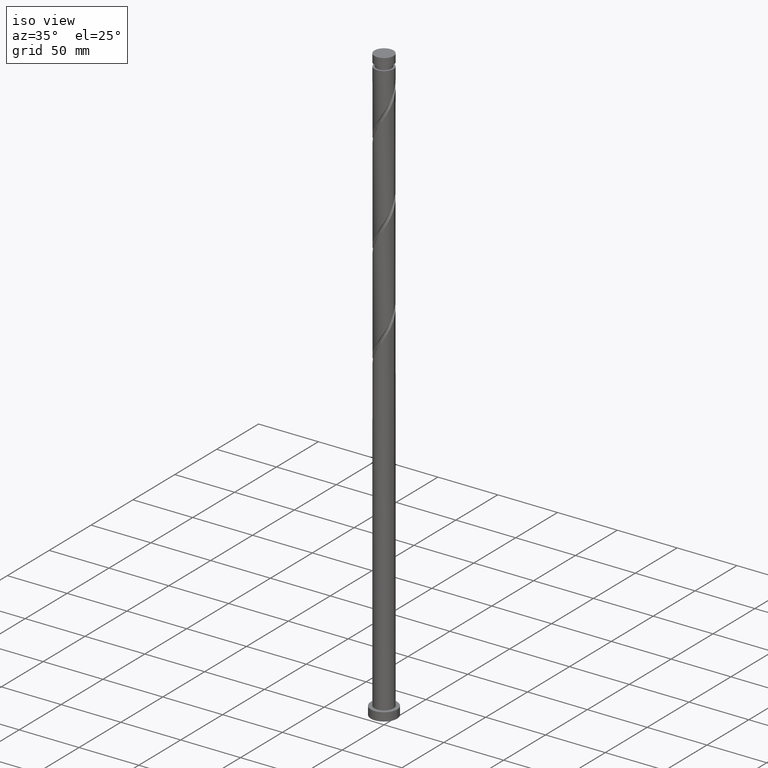
[diagram: clean part render]
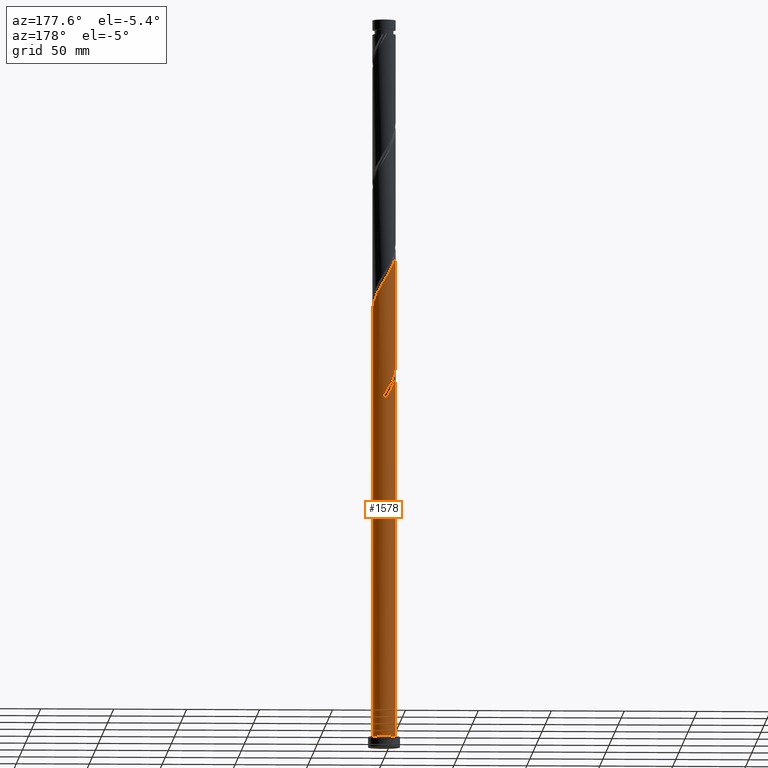
[diagram: tour spotlight — one face highlighted and labeled with its STEP entity id]
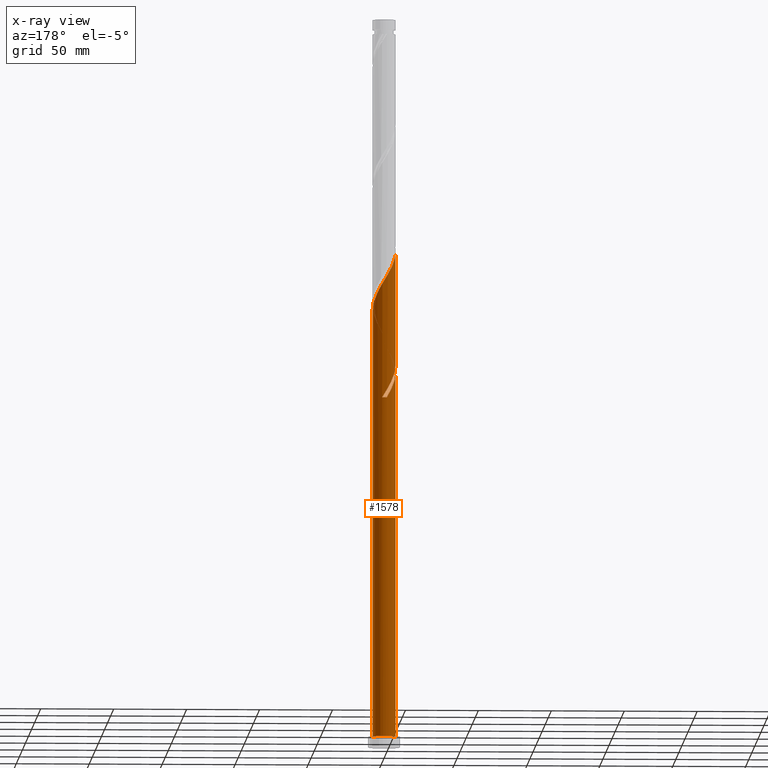
[diagram: x-ray of the same camera — body ghosted, this tour face saturated]
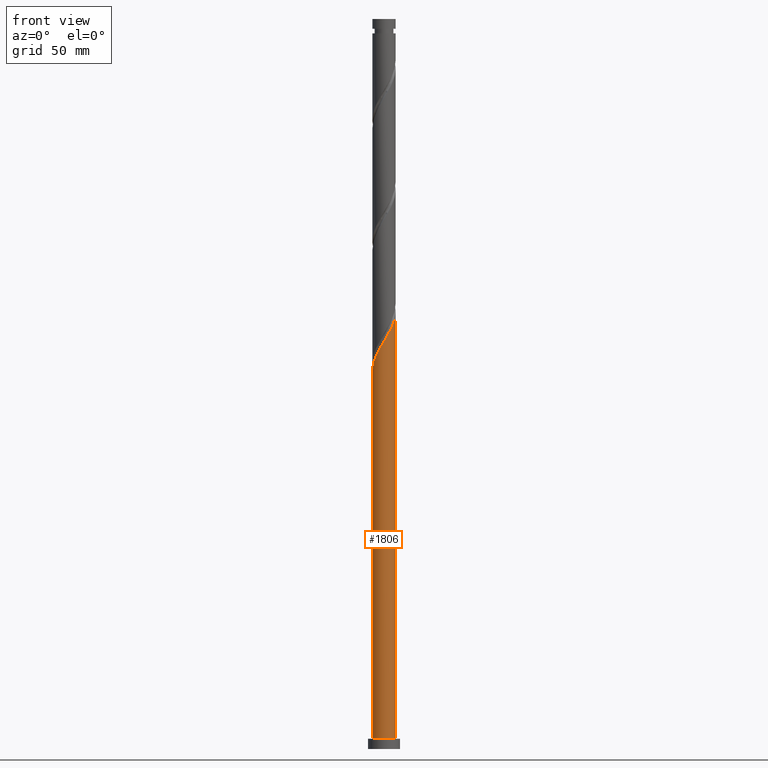
[diagram: tour spotlight — one face highlighted and labeled with its STEP entity id]
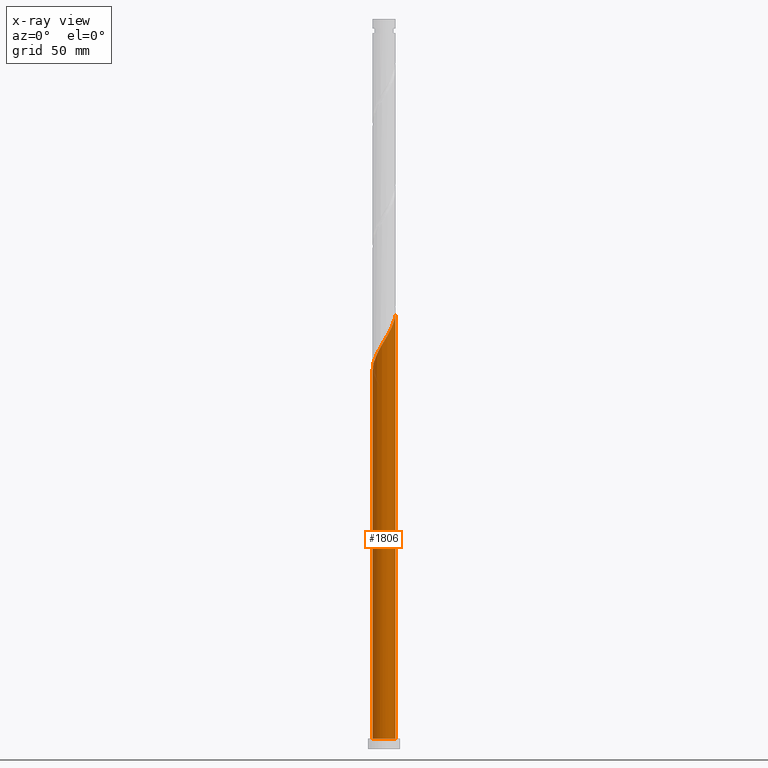
[diagram: x-ray of the same camera — body ghosted, this tour face saturated]
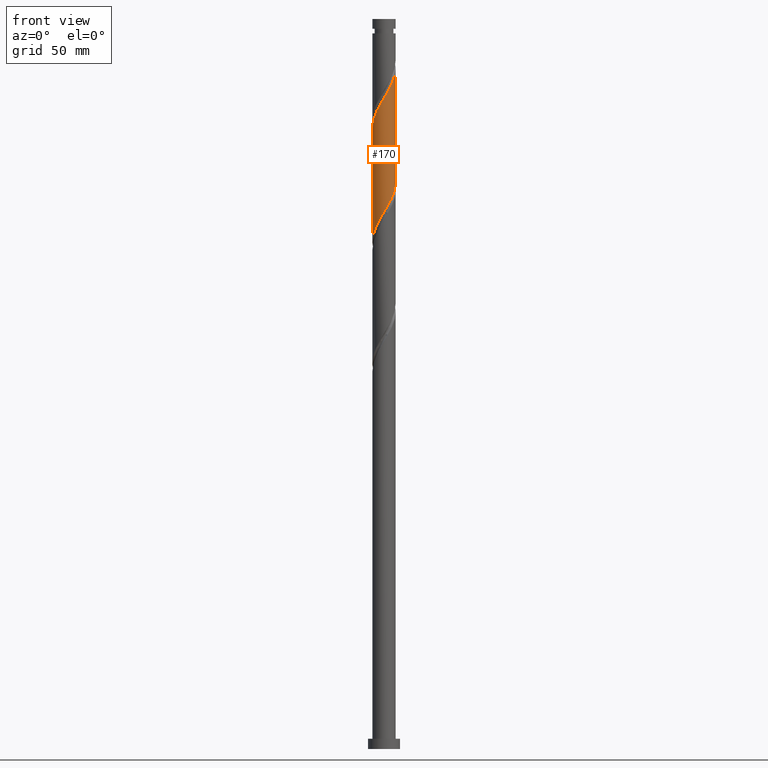
[diagram: tour spotlight — one face highlighted and labeled with its STEP entity id]
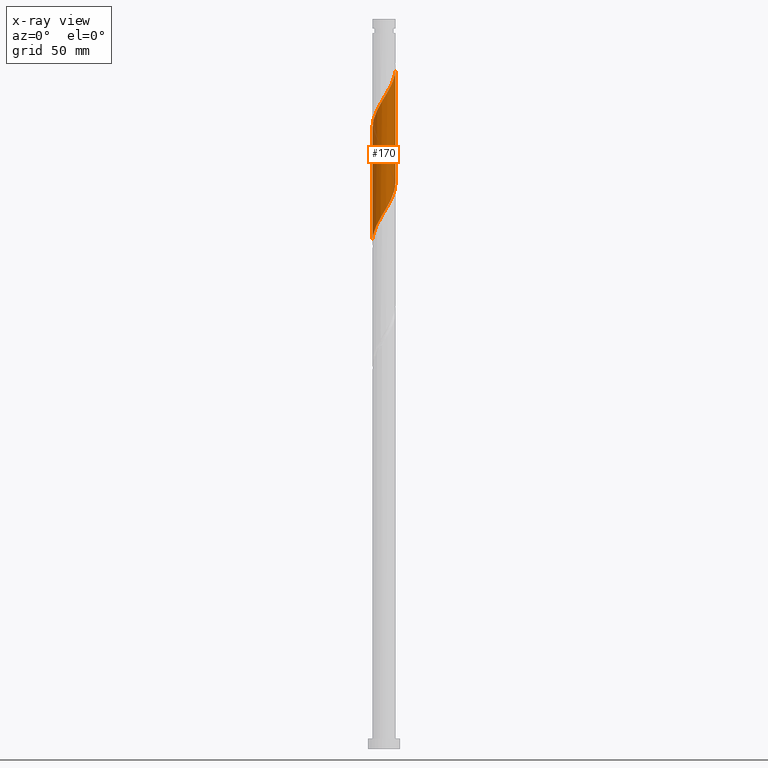
[diagram: x-ray of the same camera — body ghosted, this tour face saturated]
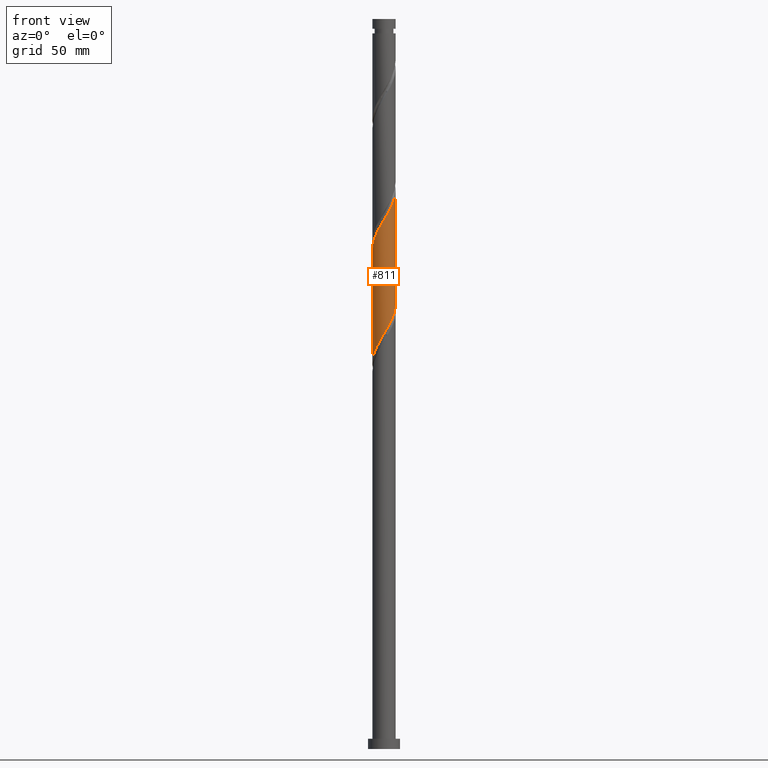
[diagram: tour spotlight — one face highlighted and labeled with its STEP entity id]
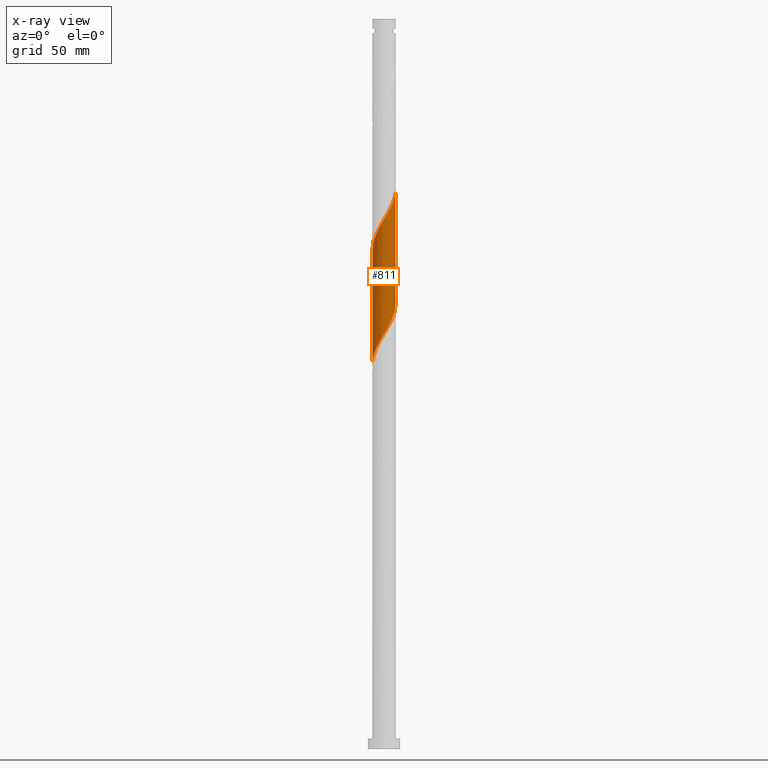
[diagram: x-ray of the same camera — body ghosted, this tour face saturated]
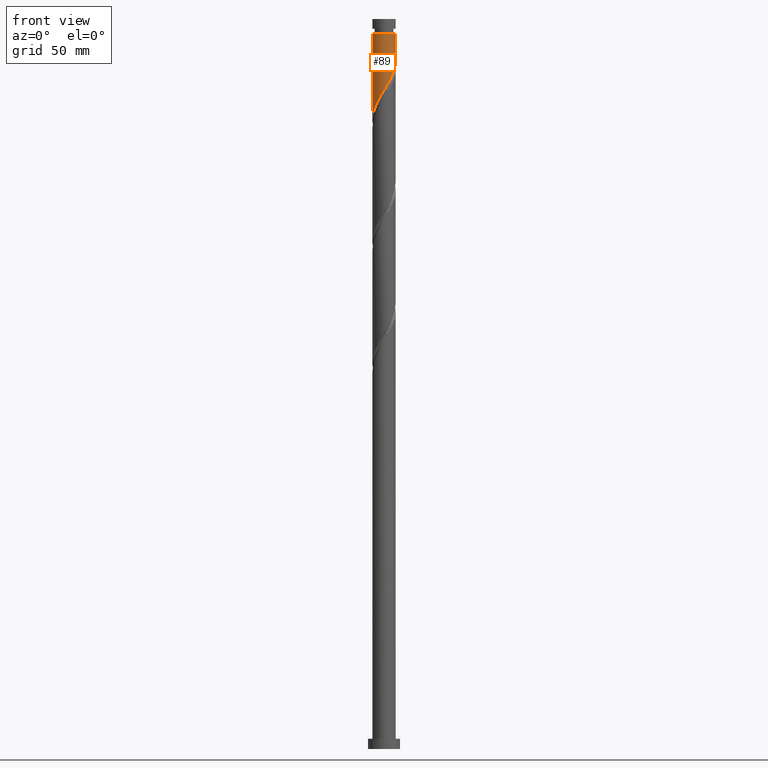
[diagram: tour spotlight — one face highlighted and labeled with its STEP entity id]
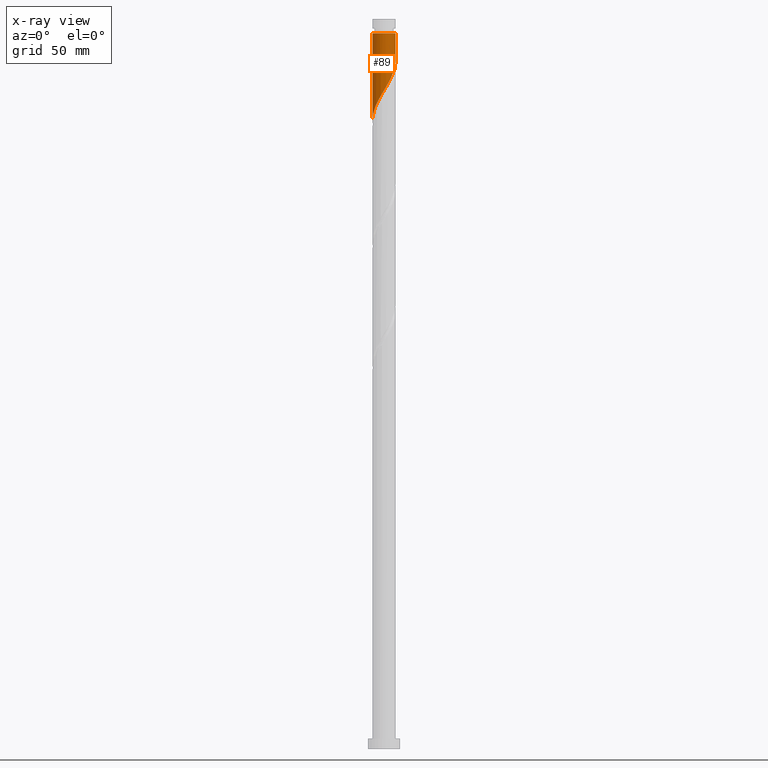
[diagram: x-ray of the same camera — body ghosted, this tour face saturated]
A machine part: a face-by-face anatomy tour. The part has 21 B-rep faces; the first image is the clean iso view, then the 5 largest visible faces are spotlighted one at a time (largest first), each with its STEP entity span.

Face 1 — auxiliary view, entity #1578. An x-ray twin of the same camera follows (body ghosted, this face saturated) — the face is partly hidden behind the body. In plain terms, the highlighted cylindrical surface (edge-blend (fillet) strip) has radius 8 mm, axis along (-0, -0, -1).
Definition (entity closure, byte-faithful):
#7 = CARTESIAN_POINT ( 'NONE',  ( 6.193632616777007271, 5.124426858357233883, 309.1582885641051348 ) ) ;
#36 = CARTESIAN_POINT ( 'NONE',  ( -7.104553678883960721, 3.761137147474598930, 335.1999552307718773 ) ) ;
#47 = CARTESIAN_POINT ( 'NONE',  ( -6.669416946860165396, 4.418017382144912020, 333.8978718974385629 ) ) ;
#86 = CIRCLE ( 'NONE', #1932, 8.000000000000000000 ) ;
#106 = CARTESIAN_POINT ( 'NONE',  ( 1.591979899370599361, 7.840000000000000746, 240.1478718974385913 ) ) ;
#113 = CARTESIAN_POINT ( 'NONE',  ( 8.000000000000000000, 9.797174393178825657E-16, 7.000000000000000000 ) ) ;
#115 = CARTESIAN_POINT ( 'NONE',  ( -8.000000000000005329, 0.7718385194318703180, 257.0483614806923924 ) ) ;
#125 = CARTESIAN_POINT ( 'NONE',  ( -7.701803129331651121, 2.302838286826541125, 254.4707885641052201 ) ) ;
#128 = FACE_OUTER_BOUND ( 'NONE', #1533, .T. ) ;
#136 = ORIENTED_EDGE ( 'NONE', *, *, #152, .F. ) ;
#149 = CARTESIAN_POINT ( 'NONE',  ( -3.090898576606946779, 7.378776727149920944, 242.7520385641053053 ) ) ;
#152 = EDGE_CURVE ( 'NONE', #541, #235, #1822, .T. ) ;
#159 = CARTESIAN_POINT ( 'NONE',  ( -3.817644651523123933, 7.074349788705239561, 244.0541218974385345 ) ) ;
#166 = CARTESIAN_POINT ( 'NONE',  ( 4.418017382144912020, 6.669416946860164508, 313.0645385641052485 ) ) ;
#201 = VERTEX_POINT ( 'NONE', #865 ) ;
#214 =( BOUNDED_CURVE ( )  B_SPLINE_CURVE ( 2, ( #2070, #1733, #1936, #1123, #1337, #1056, #1237, #676, #1345, #7, #1457, #324, #166, #818, #1155, #665, #844, #1371, #720, #564, #1215, #1048, #1203, #223, #709, #2021, #1788, #931, #47, #36, #678, #605, #1741, #1577, #1568 ),
 .UNSPECIFIED., .F., .T. ) 
 B_SPLINE_CURVE_WITH_KNOTS ( ( 3, 2, 2, 2, 2, 2, 2, 2, 2, 2, 2, 2, 2, 2, 2, 2, 2, 3 ),
 ( 0.1795286902180875110, 0.1796875000000000000, 0.1875000000000000000, 0.1953125000000000000, 0.2031250000000000000, 0.2109375000000000000, 0.2187500000000000000, 0.2265625000000000000, 0.2343750000000000000, 0.2421875000000000000, 0.2500000000000000000, 0.2578125000000000000, 0.2656250000000000000, 0.2734375000000000000, 0.2812500000000000000, 0.2890625000000000000, 0.2968750000000000000, 0.3045286902180867616 ),
 .UNSPECIFIED. ) 
 CURVE ( )  GEOMETRIC_REPRESENTATION_ITEM ( )  RATIONAL_B_SPLINE_CURVE ( ( 0.9089165573359412331, 0.9090019243628458812, 0.9090909090909375934, 0.9047133878838438115, 0.9090909090909375934, 0.9047133878838438115, 0.9090909090909375934, 0.9047133878838438115, 0.9090909090909375934, 0.9047133878838438115, 0.9090909090909375934, 0.9047133878838438115, 0.9090909090909375934, 0.9047133878838438115, 0.9090909090909375934, 0.9047133878838438115, 0.9090909090909375934, 0.9047133878838438115, 0.9090909090909375934, 0.9047133878838438115, 0.9090909090909375934, 0.9047133878838438115, 0.9090909090909375934, 0.9047133878838438115, 0.9090909090909375934, 0.9047133878838438115, 0.9090909090909375934, 0.9047133878838438115, 0.9090909090909375934, 0.9047133878838438115, 0.9090909090909375934, 0.9047133878838438115, 0.9090909090909375934, 0.9048023726119358567, 0.9089165573359405670 ) ) 
 REPRESENTATION_ITEM ( '' )  );
#223 = CARTESIAN_POINT ( 'NONE',  ( -3.817644651523123933, 7.074349788705239561, 327.3874552307718204 ) ) ;
#234 = CARTESIAN_POINT ( 'NONE',  ( -7.840000000000000746, 1.591979899370597584, 260.9812052307718773 ) ) ;
#235 = VERTEX_POINT ( 'NONE', #1582 ) ;
#247 =( BOUNDED_CURVE ( )  B_SPLINE_CURVE ( 2, ( #710, #878, #2022, #913, #234, #391, #755, #1895, #419, #1721, #590, #1216, #1735, #1049, #382, #578, #1572, #1875, #2060, #1708, #106 ),
 .UNSPECIFIED., .F., .T. ) 
 B_SPLINE_CURVE_WITH_KNOTS ( ( 3, 2, 2, 2, 2, 2, 2, 2, 2, 2, 3 ),
 ( 0.9295286902180872612, 0.9296875000000000000, 0.9375000000000000000, 0.9453125000000000000, 0.9531250000000000000, 0.9609375000000000000, 0.9687500000000000000, 0.9765625000000000000, 0.9843750000000000000, 0.9921875000000000000, 1.000000000000000000 ),
 .UNSPECIFIED. ) 
 CURVE ( )  GEOMETRIC_REPRESENTATION_ITEM ( )  RATIONAL_B_SPLINE_CURVE ( ( 0.9089165573359369033, 0.9090019243628416623, 0.9090909090909334855, 0.9047133878838395926, 0.9090909090909334855, 0.9047133878838395926, 0.9090909090909334855, 0.9047133878838395926, 0.9090909090909334855, 0.9047133878838395926, 0.9090909090909334855, 0.9047133878838395926, 0.9090909090909334855, 0.9047133878838395926, 0.9090909090909334855, 0.9047133878838395926, 0.9090909090909334855, 0.9047133878838395926, 0.9090909090909334855, 0.9047133878838395926, 0.9090909090909334855 ) ) 
 REPRESENTATION_ITEM ( '' )  );
#250 = DIRECTION ( 'NONE',  ( 0.000000000000000000, 0.000000000000000000, 1.000000000000000000 ) ) ;
#324 = CARTESIAN_POINT ( 'NONE',  ( 5.074897616815219337, 6.234280214836369183, 311.7624552307719341 ) ) ;
#361 = ORIENTED_EDGE ( 'NONE', *, *, #1041, .T. ) ;
#382 = CARTESIAN_POINT ( 'NONE',  ( -3.031987717150565587, 7.403178404107800148, 247.9603718974385629 ) ) ;
#391 = CARTESIAN_POINT ( 'NONE',  ( -7.683203665594589005, 2.364152501690765629, 259.6791218974385629 ) ) ;
#411 = CARTESIAN_POINT ( 'NONE',  ( 0.000000000000000000, 0.000000000000000000, 7.000000000000000000 ) ) ;
#419 = CARTESIAN_POINT ( 'NONE',  ( -6.633991202741118087, 4.471035754940177576, 255.7728718974385345 ) ) ;
#421 = AXIS2_PLACEMENT_3D ( 'NONE', #1149, #455, #924 ) ;
#430 = CARTESIAN_POINT ( 'NONE',  ( -1.591979899370596252, 7.840000000000008740, 240.1478718974385913 ) ) ;
#450 = CARTESIAN_POINT ( 'NONE',  ( -8.000000000000008882, 3.146890474381745152E-14, 258.3243415861083463 ) ) ;
#455 = DIRECTION ( 'NONE',  ( -0.000000000000000000, -0.000000000000000000, -1.000000000000000000 ) ) ;
#459 =( BOUNDED_CURVE ( )  B_SPLINE_CURVE ( 2, ( #430, #971, #149, #159, #798, #1583, #1938, #935, #810, #922, #630, #125, #475, #115, #621 ),
 .UNSPECIFIED., .F., .T. ) 
 B_SPLINE_CURVE_WITH_KNOTS ( ( 3, 2, 2, 2, 2, 2, 2, 3 ),
 ( 0.000000000000000000, 0.007812500000000000000, 0.01562500000000000000, 0.02343750000000000000, 0.03125000000000000000, 0.03906250000000000000, 0.04687500000000000000, 0.05452869021808703226 ),
 .UNSPECIFIED. ) 
 CURVE ( )  GEOMETRIC_REPRESENTATION_ITEM ( )  RATIONAL_B_SPLINE_CURVE ( ( 0.9090909090909375934, 0.9047133878838438115, 0.9090909090909375934, 0.9047133878838438115, 0.9090909090909375934, 0.9047133878838438115, 0.9090909090909375934, 0.9047133878838438115, 0.9090909090909375934, 0.9047133878838438115, 0.9090909090909375934, 0.9047133878838438115, 0.9090909090909375934, 0.9048023726119356347, 0.9089165573359409001 ) ) 
 REPRESENTATION_ITEM ( '' )  );
#475 = CARTESIAN_POINT ( 'NONE',  ( -7.852439867035863941, 1.529440464544434164, 255.7728718974385345 ) ) ;
#484 = VERTEX_POINT ( 'NONE', #113 ) ;
#532 = EDGE_CURVE ( 'NONE', #1328, #1767, #945, .T. ) ;
#541 = VERTEX_POINT ( 'NONE', #450 ) ;
#564 = CARTESIAN_POINT ( 'NONE',  ( -0.8198072970504302059, 7.996796334405413376, 322.1791218974384492 ) ) ;
#570 = VERTEX_POINT ( 'NONE', #1913 ) ;
#578 = CARTESIAN_POINT ( 'NONE',  ( -2.302838286826536240, 7.701803129331644904, 246.6582885641052201 ) ) ;
#590 = CARTESIAN_POINT ( 'NONE',  ( -5.634265116796108863, 5.679353536596797092, 253.1687052307719057 ) ) ;
#605 = CARTESIAN_POINT ( 'NONE',  ( -7.701803129331651121, 2.302838286826541125, 337.8041218974385629 ) ) ;
#621 = CARTESIAN_POINT ( 'NONE',  ( -8.000000000000008882, 3.146890474381745783E-14, 258.3243415861083463 ) ) ;
#630 = CARTESIAN_POINT ( 'NONE',  ( -7.403178404107808142, 3.031987717150570916, 253.1687052307719625 ) ) ;
#665 = CARTESIAN_POINT ( 'NONE',  ( 2.302838286826542014, 7.701803129331649345, 316.9707885641051348 ) ) ;
#676 = CARTESIAN_POINT ( 'NONE',  ( 7.074349788705241338, 3.817644651523121269, 306.5541218974384492 ) ) ;
#678 = CARTESIAN_POINT ( 'NONE',  ( -7.403178404107808142, 3.031987717150570916, 336.5020385641051917 ) ) ;
#709 = CARTESIAN_POINT ( 'NONE',  ( -4.471035754940179352, 6.633991202741124305, 328.6895385641052485 ) ) ;
#710 = CARTESIAN_POINT ( 'NONE',  ( -7.999999999999998224, 1.498332890520905036E-14, 263.6380688754353514 ) ) ;
#720 = CARTESIAN_POINT ( 'NONE',  ( -0.03188232739404774779, 7.999936469572747733, 320.8770385641052485 ) ) ;
#755 = CARTESIAN_POINT ( 'NONE',  ( -7.378776727149912062, 3.090898576606943671, 258.3770385641052485 ) ) ;
#763 = DIRECTION ( 'NONE',  ( -0.000000000000000000, -0.000000000000000000, -1.000000000000000000 ) ) ;
#798 = CARTESIAN_POINT ( 'NONE',  ( -4.471035754940179352, 6.633991202741124305, 245.3562052307719057 ) ) ;
#810 = CARTESIAN_POINT ( 'NONE',  ( -6.669416946860165396, 4.418017382144912020, 250.5645385641052201 ) ) ;
#818 = CARTESIAN_POINT ( 'NONE',  ( 3.761137147474603371, 7.104553678883959833, 314.3666218974385629 ) ) ;
#821 = EDGE_CURVE ( 'NONE', #570, #1328, #214, .T. ) ;
#844 = CARTESIAN_POINT ( 'NONE',  ( 1.529440464544438827, 7.852439867035863941, 318.2728718974386197 ) ) ;
#865 = CARTESIAN_POINT ( 'NONE',  ( -1.591979899370596252, 7.840000000000008740, 240.1478718974385913 ) ) ;
#878 = CARTESIAN_POINT ( 'NONE',  ( -7.999999999999998224, 0.01594122699409400087, 263.6117153209180515 ) ) ;
#913 = CARTESIAN_POINT ( 'NONE',  ( -7.996796334405404494, 0.8198072970504293178, 262.2832885641051917 ) ) ;
#915 = CARTESIAN_POINT ( 'NONE',  ( -8.000000000000008882, 9.171907145482446915E-15, 341.6576749194416038 ) ) ;
#922 = CARTESIAN_POINT ( 'NONE',  ( -7.104553678883960721, 3.761137147474598930, 251.8666218974385913 ) ) ;
#924 = DIRECTION ( 'NONE',  ( -1.000000000000000000, 0.000000000000000000, 0.000000000000000000 ) ) ;
#931 = CARTESIAN_POINT ( 'NONE',  ( -6.234280214836369183, 5.074897616815220225, 332.5957885641052485 ) ) ;
#935 = CARTESIAN_POINT ( 'NONE',  ( -6.234280214836369183, 5.074897616815220225, 249.2624552307719057 ) ) ;
#945 = LINE ( 'NONE', #1603, #1391 ) ;
#958 = ORIENTED_EDGE ( 'NONE', *, *, #821, .F. ) ;
#971 = CARTESIAN_POINT ( 'NONE',  ( -2.364152501690765629, 7.683203665594600551, 241.4499552307718488 ) ) ;
#972 = ORIENTED_EDGE ( 'NONE', *, *, #532, .F. ) ;
#1001 = CARTESIAN_POINT ( 'NONE',  ( -8.000000000000000000, 0.000000000000000000, 500.0000000000000000 ) ) ;
#1024 = CARTESIAN_POINT ( 'NONE',  ( 8.000000000000000000, 9.797174393178825657E-16, 500.0000000000000000 ) ) ;
#1041 = EDGE_CURVE ( 'NONE', #570, #484, #1689, .T. ) ;
#1048 = CARTESIAN_POINT ( 'NONE',  ( -2.364152501690765629, 7.683203665594600551, 324.7832885641051348 ) ) ;
#1049 = CARTESIAN_POINT ( 'NONE',  ( -3.761137147474594933, 7.104553678883956280, 249.2624552307719341 ) ) ;
#1056 = CARTESIAN_POINT ( 'NONE',  ( 7.683203665594600551, 2.364152501690762076, 303.9499552307718204 ) ) ;
#1112 = AXIS2_PLACEMENT_3D ( 'NONE', #411, #250, #1250 ) ;
#1118 = DIRECTION ( 'NONE',  ( 0.000000000000000000, -0.000000000000000000, -1.000000000000000000 ) ) ;
#1123 = CARTESIAN_POINT ( 'NONE',  ( 7.996796334405413376, 0.8198072970504307611, 301.3457885641052485 ) ) ;
#1149 = CARTESIAN_POINT ( 'NONE',  ( 0.000000000000000000, 0.000000000000000000, 500.0000000000000000 ) ) ;
#1155 = CARTESIAN_POINT ( 'NONE',  ( 3.031987717150569583, 7.403178404107808142, 315.6687052307718773 ) ) ;
#1181 = ORIENTED_EDGE ( 'NONE', *, *, #1347, .T. ) ;
#1190 = EDGE_CURVE ( 'NONE', #201, #1915, #86, .T. ) ;
#1203 = CARTESIAN_POINT ( 'NONE',  ( -3.090898576606946779, 7.378776727149920944, 326.0853718974386766 ) ) ;
#1215 = CARTESIAN_POINT ( 'NONE',  ( -1.591979899370596030, 7.840000000000008740, 323.4812052307718204 ) ) ;
#1216 = CARTESIAN_POINT ( 'NONE',  ( -5.074897616815214008, 6.234280214836361189, 251.8666218974386481 ) ) ;
#1237 = CARTESIAN_POINT ( 'NONE',  ( 7.378776727149920944, 3.090898576606946779, 305.2520385641051917 ) ) ;
#1250 = DIRECTION ( 'NONE',  ( 1.000000000000000000, 0.000000000000000000, 0.000000000000000000 ) ) ;
#1317 = CYLINDRICAL_SURFACE ( 'NONE', #421, 8.000000000000000000 ) ;
#1328 = VERTEX_POINT ( 'NONE', #915 ) ;
#1337 = CARTESIAN_POINT ( 'NONE',  ( 7.840000000000008740, 1.591979899370596918, 302.6478718974385060 ) ) ;
#1345 = CARTESIAN_POINT ( 'NONE',  ( 6.633991202741123416, 4.471035754940180240, 307.8562052307719341 ) ) ;
#1347 = EDGE_CURVE ( 'NONE', #484, #235, #1797, .T. ) ;
#1371 = CARTESIAN_POINT ( 'NONE',  ( 0.7560426422623273135, 8.003076604740078537, 319.5749552307719341 ) ) ;
#1391 = VECTOR ( 'NONE', #763, 1000.000000000000000 ) ;
#1439 = CARTESIAN_POINT ( 'NONE',  ( 1.591979899370599361, 7.839999999999999858, 240.1478718974385913 ) ) ;
#1455 = CARTESIAN_POINT ( 'NONE',  ( 0.000000000000000000, 0.000000000000000000, 240.1478718974385913 ) ) ;
#1457 = CARTESIAN_POINT ( 'NONE',  ( 5.634265116796116857, 5.679353536596799756, 310.4603718974386197 ) ) ;
#1523 = ORIENTED_EDGE ( 'NONE', *, *, #1190, .T. ) ;
#1533 = EDGE_LOOP ( 'NONE', ( #958, #361, #1181, #136, #1719, #1523, #1811, #972 ) ) ;
#1546 = DIRECTION ( 'NONE',  ( -0.000000000000000000, -0.000000000000000000, -1.000000000000000000 ) ) ;
#1568 = CARTESIAN_POINT ( 'NONE',  ( -8.000000000000008882, 9.171907145482446915E-15, 341.6576749194416038 ) ) ;
#1572 = CARTESIAN_POINT ( 'NONE',  ( -1.529440464544431055, 7.852439867035857723, 245.3562052307719057 ) ) ;
#1577 = CARTESIAN_POINT ( 'NONE',  ( -8.000000000000000000, 0.7718385194318971854, 340.3816948140256500 ) ) ;
#1578 = ADVANCED_FACE ( 'NONE', ( #128 ), #1317, .T. ) ;
#1582 = CARTESIAN_POINT ( 'NONE',  ( -8.000000000000000000, 0.000000000000000000, 7.000000000000000000 ) ) ;
#1583 = CARTESIAN_POINT ( 'NONE',  ( -5.124426858357233883, 6.193632616777007271, 246.6582885641052201 ) ) ;
#1590 = VECTOR ( 'NONE', #1546, 1000.000000000000000 ) ;
#1603 = CARTESIAN_POINT ( 'NONE',  ( -8.000000000000000000, 0.000000000000000000, 500.0000000000000000 ) ) ;
#1641 = CARTESIAN_POINT ( 'NONE',  ( -7.999999999999998224, 1.498332890520905036E-14, 263.6380688754353514 ) ) ;
#1656 = DIRECTION ( 'NONE',  ( -0.000000000000000000, -0.000000000000000000, -1.000000000000000000 ) ) ;
#1689 = LINE ( 'NONE', #1024, #1590 ) ;
#1708 = CARTESIAN_POINT ( 'NONE',  ( 0.8198072970504296508, 7.996796334405404494, 241.4499552307719341 ) ) ;
#1712 = VECTOR ( 'NONE', #1656, 1000.000000000000000 ) ;
#1719 = ORIENTED_EDGE ( 'NONE', *, *, #1894, .F. ) ;
#1721 = CARTESIAN_POINT ( 'NONE',  ( -6.193632616776999278, 5.124426858357231218, 254.4707885641053338 ) ) ;
#1733 = CARTESIAN_POINT ( 'NONE',  ( 8.000000000000008882, 0.01594122699411450531, 300.0173618072924455 ) ) ;
#1735 = CARTESIAN_POINT ( 'NONE',  ( -4.418017382144907579, 6.669416946860160067, 250.5645385641052201 ) ) ;
#1741 = CARTESIAN_POINT ( 'NONE',  ( -7.852439867035863941, 1.529440464544434164, 339.1062052307718204 ) ) ;
#1767 = VERTEX_POINT ( 'NONE', #1641 ) ;
#1788 = CARTESIAN_POINT ( 'NONE',  ( -5.679353536596801533, 5.634265116796115080, 331.2937052307718204 ) ) ;
#1797 = CIRCLE ( 'NONE', #1112, 8.000000000000000000 ) ;
#1811 = ORIENTED_EDGE ( 'NONE', *, *, #1837, .F. ) ;
#1822 = LINE ( 'NONE', #1001, #1712 ) ;
#1837 = EDGE_CURVE ( 'NONE', #1767, #1915, #247, .T. ) ;
#1875 = CARTESIAN_POINT ( 'NONE',  ( -0.7560426422623246490, 8.003076604740073208, 244.0541218974386197 ) ) ;
#1894 = EDGE_CURVE ( 'NONE', #201, #541, #459, .T. ) ;
#1895 = CARTESIAN_POINT ( 'NONE',  ( -7.074349788705235120, 3.817644651523121269, 257.0749552307719341 ) ) ;
#1913 = CARTESIAN_POINT ( 'NONE',  ( 8.000000000000007105, 1.041508171691849484E-14, 299.9910082527751456 ) ) ;
#1915 = VERTEX_POINT ( 'NONE', #1439 ) ;
#1932 = AXIS2_PLACEMENT_3D ( 'NONE', #1455, #1118, #2097 ) ;
#1936 = CARTESIAN_POINT ( 'NONE',  ( 7.999936469572747733, 0.03188232739404819188, 300.0437052307719341 ) ) ;
#1938 = CARTESIAN_POINT ( 'NONE',  ( -5.679353536596801533, 5.634265116796115080, 247.9603718974385629 ) ) ;
#2021 = CARTESIAN_POINT ( 'NONE',  ( -5.124426858357233883, 6.193632616777007271, 329.9916218974385060 ) ) ;
#2022 = CARTESIAN_POINT ( 'NONE',  ( -7.999936469572738851, 0.03188232739405277155, 263.5853718974385060 ) ) ;
#2060 = CARTESIAN_POINT ( 'NONE',  ( 0.03188232739405234828, 7.999936469572738851, 242.7520385641052201 ) ) ;
#2070 = CARTESIAN_POINT ( 'NONE',  ( 8.000000000000007105, 1.041508171691849484E-14, 299.9910082527751456 ) ) ;
#2097 = DIRECTION ( 'NONE',  ( -1.000000000000000000, 0.000000000000000000, 0.000000000000000000 ) ) ;

Face 2 — front view, entity #1806. An x-ray twin of the same camera follows (body ghosted, this face saturated) — the face is partly hidden behind the body. In plain terms, the highlighted cylindrical surface (edge-blend (fillet) strip) has radius 8 mm, axis along (-0, -0, -1).
Definition (entity closure, byte-faithful):
#25 = CARTESIAN_POINT ( 'NONE',  ( -8.000000000000010658, -0.01594122699406917004, 258.3506951406256462 ) ) ;
#72 = CARTESIAN_POINT ( 'NONE',  ( -6.193632616777006383, -5.124426858357234771, 267.4916218974385629 ) ) ;
#95 = CARTESIAN_POINT ( 'NONE',  ( -1.529440464544434386, -7.852439867035863941, 276.6062052307719341 ) ) ;
#113 = CARTESIAN_POINT ( 'NONE',  ( 8.000000000000000000, 9.797174393178825657E-16, 7.000000000000000000 ) ) ;
#152 = EDGE_CURVE ( 'NONE', #541, #235, #1822, .T. ) ;
#205 = CARTESIAN_POINT ( 'NONE',  ( -7.683203665594600551, -2.364152501690766073, 262.2832885641051917 ) ) ;
#227 = CARTESIAN_POINT ( 'NONE',  ( -6.633991202741124305, -4.471035754940179352, 266.1895385641052485 ) ) ;
#235 = VERTEX_POINT ( 'NONE', #1582 ) ;
#238 = CARTESIAN_POINT ( 'NONE',  ( -7.074349788705239561, -3.817644651523122601, 264.8874552307718773 ) ) ;
#246 = CARTESIAN_POINT ( 'NONE',  ( 0.000000000000000000, 0.000000000000000000, 7.000000000000000000 ) ) ;
#326 = CARTESIAN_POINT ( 'NONE',  ( 3.817644651523122601, -7.074349788705241338, 285.7207885641053053 ) ) ;
#350 = ORIENTED_EDGE ( 'NONE', *, *, #1853, .T. ) ;
#450 = CARTESIAN_POINT ( 'NONE',  ( -8.000000000000008882, 3.146890474381745152E-14, 258.3243415861083463 ) ) ;
#484 = VERTEX_POINT ( 'NONE', #113 ) ;
#493 = AXIS2_PLACEMENT_3D ( 'NONE', #246, #893, #1552 ) ;
#514 = CARTESIAN_POINT ( 'NONE',  ( -7.996796334405413376, -0.8198072970504279855, 259.6791218974385060 ) ) ;
#525 = CARTESIAN_POINT ( 'NONE',  ( -5.634265116796115969, -5.679353536596800645, 268.7937052307718773 ) ) ;
#541 = VERTEX_POINT ( 'NONE', #450 ) ;
#555 = CARTESIAN_POINT ( 'NONE',  ( -5.074897616815222889, -6.234280214836367406, 270.0957885641052485 ) ) ;
#561 = ORIENTED_EDGE ( 'NONE', *, *, #1041, .F. ) ;
#570 = VERTEX_POINT ( 'NONE', #1913 ) ;
#587 = CARTESIAN_POINT ( 'NONE',  ( -0.7560426422623266474, -8.003076604740078537, 277.9082885641053053 ) ) ;
#618 = CARTESIAN_POINT ( 'NONE',  ( 3.090898576606946779, -7.378776727149920944, 284.4187052307718773 ) ) ;
#695 = CARTESIAN_POINT ( 'NONE',  ( 6.234280214836367406, -5.074897616815222889, 290.9291218974386197 ) ) ;
#795 = CARTESIAN_POINT ( 'NONE',  ( 4.471035754940179352, -6.633991202741126081, 287.0228718974385060 ) ) ;
#820 = CARTESIAN_POINT ( 'NONE',  ( 5.679353536596800645, -5.634265116796116857, 289.6270385641051348 ) ) ;
#854 = ORIENTED_EDGE ( 'NONE', *, *, #986, .F. ) ;
#864 = ORIENTED_EDGE ( 'NONE', *, *, #152, .T. ) ;
#874 = CARTESIAN_POINT ( 'NONE',  ( 7.104553678883960721, -3.761137147474603371, 293.5332885641052485 ) ) ;
#887 = CARTESIAN_POINT ( 'NONE',  ( -4.418017382144912020, -6.669416946860164508, 271.3978718974385060 ) ) ;
#893 = DIRECTION ( 'NONE',  ( 0.000000000000000000, 0.000000000000000000, 1.000000000000000000 ) ) ;
#986 = EDGE_CURVE ( 'NONE', #541, #570, #1760, .T. ) ;
#987 = CARTESIAN_POINT ( 'NONE',  ( -8.000000000000008882, 3.146890474381745783E-14, 258.3243415861083463 ) ) ;
#1001 = CARTESIAN_POINT ( 'NONE',  ( -8.000000000000000000, 0.000000000000000000, 500.0000000000000000 ) ) ;
#1024 = CARTESIAN_POINT ( 'NONE',  ( 8.000000000000000000, 9.797174393178825657E-16, 500.0000000000000000 ) ) ;
#1033 = CARTESIAN_POINT ( 'NONE',  ( 7.852439867035863941, -1.529440464544438161, 297.4395385641053053 ) ) ;
#1041 = EDGE_CURVE ( 'NONE', #570, #484, #1689, .T. ) ;
#1042 = CARTESIAN_POINT ( 'NONE',  ( -7.840000000000008740, -1.591979899370597584, 260.9812052307719341 ) ) ;
#1077 = CARTESIAN_POINT ( 'NONE',  ( 0.03188232739404881638, -7.999936469572747733, 279.2103718974385629 ) ) ;
#1177 = CARTESIAN_POINT ( 'NONE',  ( 6.669416946860164508, -4.418017382144912020, 292.2312052307719341 ) ) ;
#1200 = CARTESIAN_POINT ( 'NONE',  ( 8.000000000000014211, -0.7718385194318240217, 298.7150281473591349 ) ) ;
#1229 = DIRECTION ( 'NONE',  ( -0.000000000000000000, -0.000000000000000000, -1.000000000000000000 ) ) ;
#1289 = CARTESIAN_POINT ( 'NONE',  ( 1.591979899370597140, -7.840000000000008740, 281.8145385641051917 ) ) ;
#1343 = CARTESIAN_POINT ( 'NONE',  ( -3.761137147474598930, -7.104553678883962498, 272.6999552307718204 ) ) ;
#1350 = EDGE_LOOP ( 'NONE', ( #561, #854, #864, #350 ) ) ;
#1408 = DIRECTION ( 'NONE',  ( -1.000000000000000000, 0.000000000000000000, 0.000000000000000000 ) ) ;
#1417 = CARTESIAN_POINT ( 'NONE',  ( 0.000000000000000000, 0.000000000000000000, 500.0000000000000000 ) ) ;
#1517 = CARTESIAN_POINT ( 'NONE',  ( -7.378776727149920944, -3.090898576606945891, 263.5853718974385629 ) ) ;
#1535 = CYLINDRICAL_SURFACE ( 'NONE', #1970, 8.000000000000000000 ) ;
#1546 = DIRECTION ( 'NONE',  ( -0.000000000000000000, -0.000000000000000000, -1.000000000000000000 ) ) ;
#1551 = CARTESIAN_POINT ( 'NONE',  ( -2.302838286826541125, -7.701803129331651121, 275.3041218974385060 ) ) ;
#1552 = DIRECTION ( 'NONE',  ( 1.000000000000000000, 0.000000000000000000, 0.000000000000000000 ) ) ;
#1582 = CARTESIAN_POINT ( 'NONE',  ( -8.000000000000000000, 0.000000000000000000, 7.000000000000000000 ) ) ;
#1590 = VECTOR ( 'NONE', #1546, 1000.000000000000000 ) ;
#1625 = CARTESIAN_POINT ( 'NONE',  ( 2.364152501690765629, -7.683203665594600551, 283.1166218974385060 ) ) ;
#1629 = CIRCLE ( 'NONE', #493, 8.000000000000000000 ) ;
#1644 = CARTESIAN_POINT ( 'NONE',  ( 8.000000000000007105, 1.041508171691849484E-14, 299.9910082527751456 ) ) ;
#1656 = DIRECTION ( 'NONE',  ( -0.000000000000000000, -0.000000000000000000, -1.000000000000000000 ) ) ;
#1672 = CARTESIAN_POINT ( 'NONE',  ( 7.701803129331651121, -2.302838286826542014, 296.1374552307719341 ) ) ;
#1689 = LINE ( 'NONE', #1024, #1590 ) ;
#1712 = VECTOR ( 'NONE', #1656, 1000.000000000000000 ) ;
#1760 =( BOUNDED_CURVE ( )  B_SPLINE_CURVE ( 2, ( #987, #25, #2016, #514, #1042, #205, #1517, #238, #227, #72, #525, #555, #887, #1343, #1900, #1551, #95, #587, #1077, #1958, #1289, #1625, #618, #326, #795, #1784, #820, #695, #1177, #874, #1845, #1672, #1033, #1200, #1644 ),
 .UNSPECIFIED., .F., .T. ) 
 B_SPLINE_CURVE_WITH_KNOTS ( ( 3, 2, 2, 2, 2, 2, 2, 2, 2, 2, 2, 2, 2, 2, 2, 2, 2, 3 ),
 ( 0.05452869021808703226, 0.05468750000000000000, 0.06250000000000000000, 0.07031250000000000000, 0.07812500000000000000, 0.08593750000000000000, 0.09375000000000000000, 0.1015625000000000000, 0.1093750000000000000, 0.1171875000000000000, 0.1250000000000000000, 0.1328125000000000000, 0.1406250000000000000, 0.1484375000000000000, 0.1562500000000000000, 0.1640625000000000000, 0.1718750000000000000, 0.1795286902180875110 ),
 .UNSPECIFIED. ) 
 CURVE ( )  GEOMETRIC_REPRESENTATION_ITEM ( )  RATIONAL_B_SPLINE_CURVE ( ( 0.9089165573359409001, 0.9090019243628457701, 0.9090909090909375934, 0.9047133878838438115, 0.9090909090909375934, 0.9047133878838438115, 0.9090909090909375934, 0.9047133878838438115, 0.9090909090909375934, 0.9047133878838438115, 0.9090909090909375934, 0.9047133878838438115, 0.9090909090909375934, 0.9047133878838438115, 0.9090909090909375934, 0.9047133878838438115, 0.9090909090909375934, 0.9047133878838438115, 0.9090909090909375934, 0.9047133878838438115, 0.9090909090909375934, 0.9047133878838438115, 0.9090909090909375934, 0.9047133878838438115, 0.9090909090909375934, 0.9047133878838438115, 0.9090909090909375934, 0.9047133878838438115, 0.9090909090909375934, 0.9047133878838438115, 0.9090909090909375934, 0.9047133878838438115, 0.9090909090909375934, 0.9048023726119355237, 0.9089165573359412331 ) ) 
 REPRESENTATION_ITEM ( '' )  );
#1784 = CARTESIAN_POINT ( 'NONE',  ( 5.124426858357233883, -6.193632616777007271, 288.3249552307718773 ) ) ;
#1806 = ADVANCED_FACE ( 'NONE', ( #1866 ), #1535, .T. ) ;
#1822 = LINE ( 'NONE', #1001, #1712 ) ;
#1845 = CARTESIAN_POINT ( 'NONE',  ( 7.403178404107808142, -3.031987717150569583, 294.8353718974386197 ) ) ;
#1853 = EDGE_CURVE ( 'NONE', #235, #484, #1629, .T. ) ;
#1866 = FACE_OUTER_BOUND ( 'NONE', #1350, .T. ) ;
#1900 = CARTESIAN_POINT ( 'NONE',  ( -3.031987717150569139, -7.403178404107808142, 274.0020385641053053 ) ) ;
#1913 = CARTESIAN_POINT ( 'NONE',  ( 8.000000000000007105, 1.041508171691849484E-14, 299.9910082527751456 ) ) ;
#1958 = CARTESIAN_POINT ( 'NONE',  ( 0.8198072970504276524, -7.996796334405413376, 280.5124552307718204 ) ) ;
#1970 = AXIS2_PLACEMENT_3D ( 'NONE', #1417, #1229, #1408 ) ;
#2016 = CARTESIAN_POINT ( 'NONE',  ( -7.999936469572747733, -0.03188232739405094662, 258.3770385641052485 ) ) ;

Face 3 — front view, entity #170. An x-ray twin of the same camera follows (body ghosted, this face saturated) — the face is partly hidden behind the body. In plain terms, the highlighted cylindrical surface (edge-blend (fillet) strip) has radius 8 mm, axis along (-0, -0, -1).
Definition (entity closure, byte-faithful):
#40 = CARTESIAN_POINT ( 'NONE',  ( -5.634265116796115969, -5.679353536596800645, 435.4603718974385629 ) ) ;
#58 = VERTEX_POINT ( 'NONE', #1489 ) ;
#69 = CARTESIAN_POINT ( 'NONE',  ( 7.403178404107808142, -3.031987717150569583, 461.5020385641052485 ) ) ;
#92 = CARTESIAN_POINT ( 'NONE',  ( -8.000000000000008882, 9.171907145482446915E-15, 424.9910082527749751 ) ) ;
#123 = CARTESIAN_POINT ( 'NONE',  ( -4.471035754940177576, -6.633991202741118087, 359.9395385641051917 ) ) ;
#135 = CARTESIAN_POINT ( 'NONE',  ( 5.074897616815213119, -6.234280214836363854, 376.8666218974386766 ) ) ;
#142 = AXIS2_PLACEMENT_3D ( 'NONE', #1096, #738, #615 ) ;
#170 = ADVANCED_FACE ( 'NONE', ( #782 ), #2087, .T. ) ;
#175 = DIRECTION ( 'NONE',  ( -0.000000000000000000, -0.000000000000000000, -1.000000000000000000 ) ) ;
#230 = EDGE_CURVE ( 'NONE', #453, #1146, #508, .T. ) ;
#266 = CARTESIAN_POINT ( 'NONE',  ( 0.7560426422623226506, -8.003076604740074984, 369.0541218974385060 ) ) ;
#275 = CARTESIAN_POINT ( 'NONE',  ( -7.104553678883956280, -3.761137147474594489, 353.4291218974384492 ) ) ;
#283 = CARTESIAN_POINT ( 'NONE',  ( -7.852439867035857723, -1.529440464544430833, 349.5228718974385060 ) ) ;
#315 = CARTESIAN_POINT ( 'NONE',  ( -8.000000000000008882, 9.171907145482446915E-15, 424.9910082527750319 ) ) ;
#331 = CARTESIAN_POINT ( 'NONE',  ( -0.7560426422623266474, -8.003076604740078537, 444.5749552307718204 ) ) ;
#373 = CARTESIAN_POINT ( 'NONE',  ( -4.418017382144912020, -6.669416946860164508, 438.0645385641051917 ) ) ;
#416 = CARTESIAN_POINT ( 'NONE',  ( 6.193632616776999278, -5.124426858357231218, 379.4707885641052485 ) ) ;
#429 = CARTESIAN_POINT ( 'NONE',  ( -5.679353536596797092, -5.634265116796109751, 357.3353718974385060 ) ) ;
#433 = EDGE_CURVE ( 'NONE', #58, #453, #598, .T. ) ;
#441 = CARTESIAN_POINT ( 'NONE',  ( 6.633991202741114535, -4.471035754940180240, 380.7728718974385060 ) ) ;
#451 = CARTESIAN_POINT ( 'NONE',  ( 1.529440464544429945, -7.852439867035858612, 370.3562052307718204 ) ) ;
#453 = VERTEX_POINT ( 'NONE', #1277 ) ;
#488 = CARTESIAN_POINT ( 'NONE',  ( -2.302838286826541125, -7.701803129331651121, 441.9707885641052485 ) ) ;
#494 = CARTESIAN_POINT ( 'NONE',  ( 7.852439867035863941, -1.529440464544438161, 464.1062052307719341 ) ) ;
#499 = CARTESIAN_POINT ( 'NONE',  ( 0.8198072970504276524, -7.996796334405413376, 447.1791218974385629 ) ) ;
#508 =( BOUNDED_CURVE ( )  B_SPLINE_CURVE ( 2, ( #1742, #1423, #1286, #1611, #620, #753, #1416, #1079, #441, #416, #1732, #135, #1892, #1924, #588, #741, #451, #266, #1247, #946, #912, #1571, #2080, #2058, #123, #1746, #429, #1438, #785, #275, #1278, #1594, #283, #1448, #921 ),
 .UNSPECIFIED., .F., .T. ) 
 B_SPLINE_CURVE_WITH_KNOTS ( ( 3, 2, 2, 2, 2, 2, 2, 2, 2, 2, 2, 2, 2, 2, 2, 2, 2, 3 ),
 ( 0.5545286902180872612, 0.5546875000000000000, 0.5625000000000000000, 0.5703125000000000000, 0.5781250000000000000, 0.5859375000000000000, 0.5937500000000000000, 0.6015625000000000000, 0.6093750000000000000, 0.6171875000000000000, 0.6250000000000000000, 0.6328125000000000000, 0.6406250000000000000, 0.6484375000000000000, 0.6562500000000000000, 0.6640625000000000000, 0.6718750000000000000, 0.6795286902180871502 ),
 .UNSPECIFIED. ) 
 CURVE ( )  GEOMETRIC_REPRESENTATION_ITEM ( )  RATIONAL_B_SPLINE_CURVE ( ( 0.9089165573359369033, 0.9090019243628416623, 0.9090909090909334855, 0.9047133878838395926, 0.9090909090909334855, 0.9047133878838395926, 0.9090909090909334855, 0.9047133878838395926, 0.9090909090909334855, 0.9047133878838395926, 0.9090909090909334855, 0.9047133878838395926, 0.9090909090909334855, 0.9047133878838395926, 0.9090909090909334855, 0.9047133878838395926, 0.9090909090909334855, 0.9047133878838395926, 0.9090909090909334855, 0.9047133878838395926, 0.9090909090909334855, 0.9047133878838395926, 0.9090909090909334855, 0.9047133878838395926, 0.9090909090909334855, 0.9047133878838395926, 0.9090909090909334855, 0.9047133878838395926, 0.9090909090909334855, 0.9047133878838395926, 0.9090909090909334855, 0.9047133878838395926, 0.9090909090909334855, 0.9048023726119314158, 0.9089165573359369033 ) ) 
 REPRESENTATION_ITEM ( '' )  );
#511 = CARTESIAN_POINT ( 'NONE',  ( 6.234280214836367406, -5.074897616815222889, 457.5957885641050780 ) ) ;
#588 = CARTESIAN_POINT ( 'NONE',  ( 3.031987717150563366, -7.403178404107800148, 372.9603718974384492 ) ) ;
#595 = CARTESIAN_POINT ( 'NONE',  ( -7.378776727149920944, -3.090898576606945891, 430.2520385641053053 ) ) ;
#598 = LINE ( 'NONE', #775, #694 ) ;
#615 = DIRECTION ( 'NONE',  ( -1.000000000000000000, 0.000000000000000000, 0.000000000000000000 ) ) ;
#620 = CARTESIAN_POINT ( 'NONE',  ( 7.840000000000000746, -1.591979899370598472, 385.9812052307718204 ) ) ;
#645 = CARTESIAN_POINT ( 'NONE',  ( 7.701803129331651121, -2.302838286826542014, 462.8041218974385629 ) ) ;
#694 = VECTOR ( 'NONE', #2079, 1000.000000000000000 ) ;
#730 = VECTOR ( 'NONE', #175, 1000.000000000000000 ) ;
#737 = CARTESIAN_POINT ( 'NONE',  ( -8.000000000000008882, -0.01594122699408101473, 425.0173618072923318 ) ) ;
#738 = DIRECTION ( 'NONE',  ( -0.000000000000000000, -0.000000000000000000, -1.000000000000000000 ) ) ;
#741 = CARTESIAN_POINT ( 'NONE',  ( 2.302838286826536240, -7.701803129331644904, 371.6582885641054190 ) ) ;
#749 = CARTESIAN_POINT ( 'NONE',  ( -7.996796334405413376, -0.8198072970504279855, 426.3457885641052485 ) ) ;
#753 = CARTESIAN_POINT ( 'NONE',  ( 7.683203665594592557, -2.364152501690763408, 384.6791218974385060 ) ) ;
#775 = CARTESIAN_POINT ( 'NONE',  ( 8.000000000000000000, 9.797174393178825657E-16, 500.0000000000000000 ) ) ;
#782 = FACE_OUTER_BOUND ( 'NONE', #808, .T. ) ;
#785 = CARTESIAN_POINT ( 'NONE',  ( -6.669416946860160067, -4.418017382144904914, 354.7312052307719341 ) ) ;
#808 = EDGE_LOOP ( 'NONE', ( #1080, #1946, #2002, #843 ) ) ;
#843 = ORIENTED_EDGE ( 'NONE', *, *, #230, .F. ) ;
#866 = CARTESIAN_POINT ( 'NONE',  ( -3.761137147474598930, -7.104553678883962498, 439.3666218974386197 ) ) ;
#912 = CARTESIAN_POINT ( 'NONE',  ( -1.591979899370598250, -7.840000000000000746, 365.1478718974385060 ) ) ;
#921 = CARTESIAN_POINT ( 'NONE',  ( -7.999999999999998224, 1.498332890520905036E-14, 346.9714022087687795 ) ) ;
#946 = CARTESIAN_POINT ( 'NONE',  ( -0.8198072970504299839, -7.996796334405404494, 366.4499552307719341 ) ) ;
#961 = EDGE_CURVE ( 'NONE', #2102, #58, #1675, .T. ) ;
#995 = CARTESIAN_POINT ( 'NONE',  ( 3.090898576606946779, -7.378776727149920944, 451.0853718974385629 ) ) ;
#1039 = CARTESIAN_POINT ( 'NONE',  ( 5.679353536596800645, -5.634265116796116857, 456.2937052307718204 ) ) ;
#1079 = CARTESIAN_POINT ( 'NONE',  ( 7.074349788705234232, -3.817644651523121713, 382.0749552307719341 ) ) ;
#1080 = ORIENTED_EDGE ( 'NONE', *, *, #433, .F. ) ;
#1096 = CARTESIAN_POINT ( 'NONE',  ( 0.000000000000000000, 0.000000000000000000, 500.0000000000000000 ) ) ;
#1119 = CARTESIAN_POINT ( 'NONE',  ( 8.000000000000008882, -7.268936774513624780E-16, 466.6576749194417175 ) ) ;
#1131 = CARTESIAN_POINT ( 'NONE',  ( -8.000000000000000000, 0.000000000000000000, 500.0000000000000000 ) ) ;
#1146 = VERTEX_POINT ( 'NONE', #1792 ) ;
#1152 = LINE ( 'NONE', #1131, #730 ) ;
#1153 = EDGE_CURVE ( 'NONE', #2102, #1146, #1152, .T. ) ;
#1161 = CARTESIAN_POINT ( 'NONE',  ( 1.591979899370597140, -7.840000000000008740, 448.4812052307718773 ) ) ;
#1196 = CARTESIAN_POINT ( 'NONE',  ( 6.669416946860164508, -4.418017382144912020, 458.8978718974385629 ) ) ;
#1214 = CARTESIAN_POINT ( 'NONE',  ( 4.471035754940179352, -6.633991202741126081, 453.6895385641053053 ) ) ;
#1247 = CARTESIAN_POINT ( 'NONE',  ( -0.03188232739405148786, -7.999936469572738851, 367.7520385641052485 ) ) ;
#1253 = CARTESIAN_POINT ( 'NONE',  ( -7.683203665594600551, -2.364152501690766073, 428.9499552307718773 ) ) ;
#1273 = CARTESIAN_POINT ( 'NONE',  ( -6.633991202741124305, -4.471035754940179352, 432.8562052307718773 ) ) ;
#1277 = CARTESIAN_POINT ( 'NONE',  ( 7.999999999999998224, 8.096477268842905008E-15, 388.6380688754352946 ) ) ;
#1278 = CARTESIAN_POINT ( 'NONE',  ( -7.403178404107800148, -3.031987717150563366, 352.1270385641051917 ) ) ;
#1286 = CARTESIAN_POINT ( 'NONE',  ( 7.999936469572738851, -0.03188232739405191807, 388.5853718974384492 ) ) ;
#1404 = CARTESIAN_POINT ( 'NONE',  ( -7.999936469572747733, -0.03188232739405094662, 425.0437052307718773 ) ) ;
#1413 = CARTESIAN_POINT ( 'NONE',  ( -7.840000000000008740, -1.591979899370597584, 427.6478718974385060 ) ) ;
#1416 = CARTESIAN_POINT ( 'NONE',  ( 7.378776727149911174, -3.090898576606946779, 383.3770385641052485 ) ) ;
#1419 = CARTESIAN_POINT ( 'NONE',  ( 7.104553678883960721, -3.761137147474603371, 460.1999552307717636 ) ) ;
#1423 = CARTESIAN_POINT ( 'NONE',  ( 7.999999999999998224, -0.01594122699409318208, 388.6117153209180515 ) ) ;
#1438 = CARTESIAN_POINT ( 'NONE',  ( -6.234280214836361189, -5.074897616815214896, 356.0332885641052485 ) ) ;
#1448 = CARTESIAN_POINT ( 'NONE',  ( -8.000000000000000000, -0.7718385194318555520, 348.2473823141847333 ) ) ;
#1483 = CARTESIAN_POINT ( 'NONE',  ( -3.031987717150569139, -7.403178404107808142, 440.6687052307718204 ) ) ;
#1489 = CARTESIAN_POINT ( 'NONE',  ( 8.000000000000008882, -7.268936774513624780E-16, 466.6576749194417744 ) ) ;
#1571 = CARTESIAN_POINT ( 'NONE',  ( -2.364152501690766517, -7.683203665594589005, 363.8457885641052485 ) ) ;
#1594 = CARTESIAN_POINT ( 'NONE',  ( -7.701803129331644904, -2.302838286826536685, 350.8249552307717636 ) ) ;
#1611 = CARTESIAN_POINT ( 'NONE',  ( 7.996796334405404494, -0.8198072970504339807, 387.2832885641051348 ) ) ;
#1635 = CARTESIAN_POINT ( 'NONE',  ( -7.074349788705239561, -3.817644651523122601, 431.5541218974384492 ) ) ;
#1675 =( BOUNDED_CURVE ( )  B_SPLINE_CURVE ( 2, ( #92, #737, #1404, #749, #1413, #1253, #595, #1635, #1273, #1724, #40, #1849, #373, #866, #1483, #488, #1804, #331, #1974, #499, #1161, #1815, #995, #1707, #1214, #1734, #1039, #511, #1196, #1419, #69, #645, #494, #1955, #1119 ),
 .UNSPECIFIED., .F., .T. ) 
 B_SPLINE_CURVE_WITH_KNOTS ( ( 3, 2, 2, 2, 2, 2, 2, 2, 2, 2, 2, 2, 2, 2, 2, 2, 2, 3 ),
 ( 0.5545286902180871502, 0.5546875000000000000, 0.5625000000000000000, 0.5703125000000000000, 0.5781250000000000000, 0.5859375000000000000, 0.5937500000000000000, 0.6015625000000000000, 0.6093750000000000000, 0.6171875000000000000, 0.6250000000000000000, 0.6328125000000000000, 0.6406250000000000000, 0.6484375000000000000, 0.6562500000000000000, 0.6640625000000000000, 0.6718750000000000000, 0.6795286902180870392 ),
 .UNSPECIFIED. ) 
 CURVE ( )  GEOMETRIC_REPRESENTATION_ITEM ( )  RATIONAL_B_SPLINE_CURVE ( ( 0.9089165573359410111, 0.9090019243628457701, 0.9090909090909375934, 0.9047133878838438115, 0.9090909090909375934, 0.9047133878838438115, 0.9090909090909375934, 0.9047133878838438115, 0.9090909090909375934, 0.9047133878838438115, 0.9090909090909375934, 0.9047133878838438115, 0.9090909090909375934, 0.9047133878838438115, 0.9090909090909375934, 0.9047133878838438115, 0.9090909090909375934, 0.9047133878838438115, 0.9090909090909375934, 0.9047133878838438115, 0.9090909090909375934, 0.9047133878838438115, 0.9090909090909375934, 0.9047133878838438115, 0.9090909090909375934, 0.9047133878838438115, 0.9090909090909375934, 0.9047133878838438115, 0.9090909090909375934, 0.9047133878838438115, 0.9090909090909375934, 0.9047133878838438115, 0.9090909090909375934, 0.9048023726119356347, 0.9089165573359409001 ) ) 
 REPRESENTATION_ITEM ( '' )  );
#1707 = CARTESIAN_POINT ( 'NONE',  ( 3.817644651523122601, -7.074349788705241338, 452.3874552307718204 ) ) ;
#1724 = CARTESIAN_POINT ( 'NONE',  ( -6.193632616777006383, -5.124426858357234771, 434.1582885641051348 ) ) ;
#1732 = CARTESIAN_POINT ( 'NONE',  ( 5.634265116796108863, -5.679353536596797092, 378.1687052307719341 ) ) ;
#1734 = CARTESIAN_POINT ( 'NONE',  ( 5.124426858357233883, -6.193632616777007271, 454.9916218974385060 ) ) ;
#1742 = CARTESIAN_POINT ( 'NONE',  ( 7.999999999999998224, 8.096477268842903430E-15, 388.6380688754352946 ) ) ;
#1746 = CARTESIAN_POINT ( 'NONE',  ( -5.124426858357231218, -6.193632616776999278, 358.6374552307719341 ) ) ;
#1792 = CARTESIAN_POINT ( 'NONE',  ( -7.999999999999998224, 1.498332890520905036E-14, 346.9714022087687795 ) ) ;
#1804 = CARTESIAN_POINT ( 'NONE',  ( -1.529440464544434386, -7.852439867035863941, 443.2728718974384492 ) ) ;
#1815 = CARTESIAN_POINT ( 'NONE',  ( 2.364152501690765629, -7.683203665594600551, 449.7832885641050780 ) ) ;
#1849 = CARTESIAN_POINT ( 'NONE',  ( -5.074897616815222889, -6.234280214836367406, 436.7624552307717636 ) ) ;
#1892 = CARTESIAN_POINT ( 'NONE',  ( 4.418017382144904914, -6.669416946860161843, 375.5645385641051917 ) ) ;
#1924 = CARTESIAN_POINT ( 'NONE',  ( 3.761137147474594045, -7.104553678883956280, 374.2624552307719910 ) ) ;
#1946 = ORIENTED_EDGE ( 'NONE', *, *, #961, .F. ) ;
#1955 = CARTESIAN_POINT ( 'NONE',  ( 8.000000000000005329, -0.7718385194318710951, 465.3816948140258205 ) ) ;
#1974 = CARTESIAN_POINT ( 'NONE',  ( 0.03188232739404881638, -7.999936469572747733, 445.8770385641051917 ) ) ;
#2002 = ORIENTED_EDGE ( 'NONE', *, *, #1153, .T. ) ;
#2058 = CARTESIAN_POINT ( 'NONE',  ( -3.817644651523121269, -7.074349788705234232, 361.2416218974385629 ) ) ;
#2079 = DIRECTION ( 'NONE',  ( -0.000000000000000000, -0.000000000000000000, -1.000000000000000000 ) ) ;
#2080 = CARTESIAN_POINT ( 'NONE',  ( -3.090898576606946779, -7.378776727149912062, 362.5437052307719341 ) ) ;
#2087 = CYLINDRICAL_SURFACE ( 'NONE', #142, 8.000000000000000000 ) ;
#2102 = VERTEX_POINT ( 'NONE', #315 ) ;

Face 4 — front view, entity #811. An x-ray twin of the same camera follows (body ghosted, this face saturated) — the face is partly hidden behind the body. In plain terms, the highlighted cylindrical surface (edge-blend (fillet) strip) has radius 8 mm, axis along (-0, -0, -1).
Definition (entity closure, byte-faithful):
#41 = CARTESIAN_POINT ( 'NONE',  ( -7.403178404107800148, -3.031987717150563366, 268.7937052307718773 ) ) ;
#51 = CARTESIAN_POINT ( 'NONE',  ( -0.8198072970504299839, -7.996796334405404494, 283.1166218974385629 ) ) ;
#53 = CARTESIAN_POINT ( 'NONE',  ( -2.302838286826541125, -7.701803129331651121, 358.6374552307719341 ) ) ;
#60 = CARTESIAN_POINT ( 'NONE',  ( 5.074897616815213119, -6.234280214836363854, 293.5332885641053053 ) ) ;
#117 = DIRECTION ( 'NONE',  ( -0.000000000000000000, -0.000000000000000000, -1.000000000000000000 ) ) ;
#154 = CARTESIAN_POINT ( 'NONE',  ( -7.840000000000008740, -1.591979899370597584, 344.3145385641052485 ) ) ;
#181 = CARTESIAN_POINT ( 'NONE',  ( -7.999999999999998224, 1.498332890520905036E-14, 263.6380688754353514 ) ) ;
#183 = CARTESIAN_POINT ( 'NONE',  ( -7.378776727149920944, -3.090898576606945891, 346.9187052307718773 ) ) ;
#192 = CARTESIAN_POINT ( 'NONE',  ( 7.074349788705234232, -3.817644651523121713, 298.7416218974385629 ) ) ;
#194 = CARTESIAN_POINT ( 'NONE',  ( 3.090898576606946779, -7.378776727149920944, 367.7520385641052485 ) ) ;
#217 = CARTESIAN_POINT ( 'NONE',  ( 8.000000000000007105, 1.041508171691849484E-14, 383.3243415861085168 ) ) ;
#310 = CARTESIAN_POINT ( 'NONE',  ( -7.999936469572747733, -0.03188232739405094662, 341.7103718974385060 ) ) ;
#332 = CARTESIAN_POINT ( 'NONE',  ( 3.761137147474594045, -7.104553678883956280, 290.9291218974386197 ) ) ;
#340 = CARTESIAN_POINT ( 'NONE',  ( -8.000000000000003553, -0.7718385194318443387, 264.9140489808514189 ) ) ;
#342 = CARTESIAN_POINT ( 'NONE',  ( -5.634265116796115969, -5.679353536596800645, 352.1270385641051917 ) ) ;
#351 = CARTESIAN_POINT ( 'NONE',  ( -1.591979899370598250, -7.840000000000000746, 281.8145385641051917 ) ) ;
#362 = CARTESIAN_POINT ( 'NONE',  ( 6.633991202741114535, -4.471035754940180240, 297.4395385641051917 ) ) ;
#377 = CARTESIAN_POINT ( 'NONE',  ( 7.403178404107808142, -3.031987717150569583, 378.1687052307719910 ) ) ;
#385 = CARTESIAN_POINT ( 'NONE',  ( -7.074349788705239561, -3.817644651523122601, 348.2207885641051348 ) ) ;
#418 = DIRECTION ( 'NONE',  ( -0.000000000000000000, -0.000000000000000000, -1.000000000000000000 ) ) ;
#507 = CARTESIAN_POINT ( 'NONE',  ( 8.000000000000000000, -0.01594122699410433289, 305.2783819875848508 ) ) ;
#520 = ORIENTED_EDGE ( 'NONE', *, *, #1718, .F. ) ;
#532 = EDGE_CURVE ( 'NONE', #1328, #1767, #945, .T. ) ;
#534 = CARTESIAN_POINT ( 'NONE',  ( -7.852439867035857723, -1.529440464544430833, 266.1895385641052485 ) ) ;
#536 = CARTESIAN_POINT ( 'NONE',  ( 5.124426858357233883, -6.193632616777007271, 371.6582885641050780 ) ) ;
#543 = CARTESIAN_POINT ( 'NONE',  ( -6.234280214836361189, -5.074897616815214896, 272.6999552307719910 ) ) ;
#545 = CARTESIAN_POINT ( 'NONE',  ( 6.669416946860164508, -4.418017382144912020, 375.5645385641050211 ) ) ;
#569 =( BOUNDED_CURVE ( )  B_SPLINE_CURVE ( 2, ( #671, #507, #1659, #1493, #1372, #1678, #1330, #192, #362, #2004, #1340, #60, #1171, #332, #1651, #1828, #1204, #1513, #2012, #51, #351, #1850, #1351, #1005, #689, #867, #845, #543, #1162, #834, #41, #1994, #534, #340, #181 ),
 .UNSPECIFIED., .F., .T. ) 
 B_SPLINE_CURVE_WITH_KNOTS ( ( 3, 2, 2, 2, 2, 2, 2, 2, 2, 2, 2, 2, 2, 2, 2, 2, 2, 3 ),
 ( 0.8045286902180873723, 0.8046875000000000000, 0.8125000000000000000, 0.8203125000000000000, 0.8281250000000000000, 0.8359375000000000000, 0.8437500000000000000, 0.8515625000000000000, 0.8593750000000000000, 0.8671875000000000000, 0.8750000000000000000, 0.8828125000000000000, 0.8906250000000000000, 0.8984375000000000000, 0.9062500000000000000, 0.9140625000000000000, 0.9218750000000000000, 0.9295286902180872612 ),
 .UNSPECIFIED. ) 
 CURVE ( )  GEOMETRIC_REPRESENTATION_ITEM ( )  RATIONAL_B_SPLINE_CURVE ( ( 0.9089165573359370143, 0.9090019243628417733, 0.9090909090909334855, 0.9047133878838395926, 0.9090909090909334855, 0.9047133878838395926, 0.9090909090909334855, 0.9047133878838395926, 0.9090909090909334855, 0.9047133878838395926, 0.9090909090909334855, 0.9047133878838395926, 0.9090909090909334855, 0.9047133878838395926, 0.9090909090909334855, 0.9047133878838395926, 0.9090909090909334855, 0.9047133878838395926, 0.9090909090909334855, 0.9047133878838395926, 0.9090909090909334855, 0.9047133878838395926, 0.9090909090909334855, 0.9047133878838395926, 0.9090909090909334855, 0.9047133878838395926, 0.9090909090909334855, 0.9047133878838395926, 0.9090909090909334855, 0.9047133878838395926, 0.9090909090909334855, 0.9047133878838395926, 0.9090909090909334855, 0.9048023726119314158, 0.9089165573359369033 ) ) 
 REPRESENTATION_ITEM ( '' )  );
#589 = CARTESIAN_POINT ( 'NONE',  ( 0.000000000000000000, 0.000000000000000000, 500.0000000000000000 ) ) ;
#671 = CARTESIAN_POINT ( 'NONE',  ( 7.999999999999998224, 8.096477268842905008E-15, 305.3047355421020370 ) ) ;
#673 = CARTESIAN_POINT ( 'NONE',  ( -0.7560426422623266474, -8.003076604740078537, 361.2416218974385060 ) ) ;
#689 = CARTESIAN_POINT ( 'NONE',  ( -4.471035754940177576, -6.633991202741118087, 276.6062052307719341 ) ) ;
#691 = CARTESIAN_POINT ( 'NONE',  ( 0.03188232739404881638, -7.999936469572747733, 362.5437052307719341 ) ) ;
#763 = DIRECTION ( 'NONE',  ( -0.000000000000000000, -0.000000000000000000, -1.000000000000000000 ) ) ;
#811 = ADVANCED_FACE ( 'NONE', ( #1449 ), #1427, .T. ) ;
#812 = VERTEX_POINT ( 'NONE', #2059 ) ;
#833 = ORIENTED_EDGE ( 'NONE', *, *, #532, .T. ) ;
#834 = CARTESIAN_POINT ( 'NONE',  ( -7.104553678883956280, -3.761137147474594489, 270.0957885641052485 ) ) ;
#845 = CARTESIAN_POINT ( 'NONE',  ( -5.679353536596797092, -5.634265116796109751, 274.0020385641051917 ) ) ;
#867 = CARTESIAN_POINT ( 'NONE',  ( -5.124426858357231218, -6.193632616776999278, 275.3041218974385629 ) ) ;
#873 = VECTOR ( 'NONE', #117, 1000.000000000000000 ) ;
#880 = CARTESIAN_POINT ( 'NONE',  ( -4.418017382144912020, -6.669416946860164508, 354.7312052307718773 ) ) ;
#892 = EDGE_LOOP ( 'NONE', ( #925, #1193, #833, #520 ) ) ;
#915 = CARTESIAN_POINT ( 'NONE',  ( -8.000000000000008882, 9.171907145482446915E-15, 341.6576749194416038 ) ) ;
#925 = ORIENTED_EDGE ( 'NONE', *, *, #1592, .F. ) ;
#934 =( BOUNDED_CURVE ( )  B_SPLINE_CURVE ( 2, ( #1300, #1943, #310, #1622, #154, #1467, #183, #385, #1364, #1818, #342, #1207, #880, #2006, #998, #53, #1007, #673, #691, #1030, #1333, #1174, #194, #1681, #1526, #536, #1661, #1197, #545, #1852, #377, #1374, #1019, #1987, #217 ),
 .UNSPECIFIED., .F., .T. ) 
 B_SPLINE_CURVE_WITH_KNOTS ( ( 3, 2, 2, 2, 2, 2, 2, 2, 2, 2, 2, 2, 2, 2, 2, 2, 2, 3 ),
 ( 0.3045286902180867616, 0.3046875000000000000, 0.3125000000000000000, 0.3203125000000000000, 0.3281250000000000000, 0.3359375000000000000, 0.3437500000000000000, 0.3515625000000000000, 0.3593750000000000000, 0.3671875000000000000, 0.3750000000000000000, 0.3828125000000000000, 0.3906250000000000000, 0.3984375000000000000, 0.4062500000000000000, 0.4140625000000000000, 0.4218750000000000000, 0.4295286902180874833 ),
 .UNSPECIFIED. ) 
 CURVE ( )  GEOMETRIC_REPRESENTATION_ITEM ( )  RATIONAL_B_SPLINE_CURVE ( ( 0.9089165573359405670, 0.9090019243628455481, 0.9090909090909375934, 0.9047133878838438115, 0.9090909090909375934, 0.9047133878838438115, 0.9090909090909375934, 0.9047133878838438115, 0.9090909090909375934, 0.9047133878838438115, 0.9090909090909375934, 0.9047133878838438115, 0.9090909090909375934, 0.9047133878838438115, 0.9090909090909375934, 0.9047133878838438115, 0.9090909090909375934, 0.9047133878838438115, 0.9090909090909375934, 0.9047133878838438115, 0.9090909090909375934, 0.9047133878838438115, 0.9090909090909375934, 0.9047133878838438115, 0.9090909090909375934, 0.9047133878838438115, 0.9090909090909375934, 0.9047133878838438115, 0.9090909090909375934, 0.9047133878838438115, 0.9090909090909375934, 0.9047133878838438115, 0.9090909090909375934, 0.9048023726119355237, 0.9089165573359412331 ) ) 
 REPRESENTATION_ITEM ( '' )  );
#945 = LINE ( 'NONE', #1603, #1391 ) ;
#952 = LINE ( 'NONE', #1608, #873 ) ;
#998 = CARTESIAN_POINT ( 'NONE',  ( -3.031987717150569139, -7.403178404107808142, 357.3353718974384492 ) ) ;
#1005 = CARTESIAN_POINT ( 'NONE',  ( -3.817644651523121269, -7.074349788705234232, 277.9082885641052485 ) ) ;
#1007 = CARTESIAN_POINT ( 'NONE',  ( -1.529440464544434386, -7.852439867035863941, 359.9395385641053053 ) ) ;
#1019 = CARTESIAN_POINT ( 'NONE',  ( 7.852439867035863941, -1.529440464544438161, 380.7728718974385629 ) ) ;
#1030 = CARTESIAN_POINT ( 'NONE',  ( 0.8198072970504276524, -7.996796334405413376, 363.8457885641051348 ) ) ;
#1081 = DIRECTION ( 'NONE',  ( -1.000000000000000000, 0.000000000000000000, 0.000000000000000000 ) ) ;
#1162 = CARTESIAN_POINT ( 'NONE',  ( -6.669416946860160067, -4.418017382144904914, 271.3978718974385629 ) ) ;
#1171 = CARTESIAN_POINT ( 'NONE',  ( 4.418017382144904914, -6.669416946860161843, 292.2312052307719910 ) ) ;
#1174 = CARTESIAN_POINT ( 'NONE',  ( 2.364152501690765629, -7.683203665594600551, 366.4499552307717636 ) ) ;
#1193 = ORIENTED_EDGE ( 'NONE', *, *, #1205, .F. ) ;
#1197 = CARTESIAN_POINT ( 'NONE',  ( 6.234280214836367406, -5.074897616815222889, 374.2624552307719341 ) ) ;
#1204 = CARTESIAN_POINT ( 'NONE',  ( 1.529440464544429945, -7.852439867035858612, 287.0228718974385060 ) ) ;
#1205 = EDGE_CURVE ( 'NONE', #1328, #1950, #934, .T. ) ;
#1207 = CARTESIAN_POINT ( 'NONE',  ( -5.074897616815222889, -6.234280214836367406, 353.4291218974385629 ) ) ;
#1300 = CARTESIAN_POINT ( 'NONE',  ( -8.000000000000008882, 9.171907145482446915E-15, 341.6576749194416038 ) ) ;
#1328 = VERTEX_POINT ( 'NONE', #915 ) ;
#1330 = CARTESIAN_POINT ( 'NONE',  ( 7.378776727149911174, -3.090898576606946779, 300.0437052307718204 ) ) ;
#1333 = CARTESIAN_POINT ( 'NONE',  ( 1.591979899370597140, -7.840000000000008740, 365.1478718974385060 ) ) ;
#1340 = CARTESIAN_POINT ( 'NONE',  ( 5.634265116796108863, -5.679353536596797092, 294.8353718974385629 ) ) ;
#1351 = CARTESIAN_POINT ( 'NONE',  ( -3.090898576606946779, -7.378776727149912062, 279.2103718974386197 ) ) ;
#1364 = CARTESIAN_POINT ( 'NONE',  ( -6.633991202741124305, -4.471035754940179352, 349.5228718974385629 ) ) ;
#1372 = CARTESIAN_POINT ( 'NONE',  ( 7.840000000000000746, -1.591979899370598472, 302.6478718974385060 ) ) ;
#1374 = CARTESIAN_POINT ( 'NONE',  ( 7.701803129331651121, -2.302838286826542014, 379.4707885641051348 ) ) ;
#1391 = VECTOR ( 'NONE', #763, 1000.000000000000000 ) ;
#1427 = CYLINDRICAL_SURFACE ( 'NONE', #1463, 8.000000000000000000 ) ;
#1449 = FACE_OUTER_BOUND ( 'NONE', #892, .T. ) ;
#1463 = AXIS2_PLACEMENT_3D ( 'NONE', #589, #418, #1081 ) ;
#1467 = CARTESIAN_POINT ( 'NONE',  ( -7.683203665594600551, -2.364152501690766073, 345.6166218974384492 ) ) ;
#1493 = CARTESIAN_POINT ( 'NONE',  ( 7.996796334405404494, -0.8198072970504339807, 303.9499552307719910 ) ) ;
#1513 = CARTESIAN_POINT ( 'NONE',  ( 0.7560426422623226506, -8.003076604740074984, 285.7207885641051348 ) ) ;
#1526 = CARTESIAN_POINT ( 'NONE',  ( 4.471035754940179352, -6.633991202741126081, 370.3562052307718773 ) ) ;
#1592 = EDGE_CURVE ( 'NONE', #1950, #812, #952, .T. ) ;
#1603 = CARTESIAN_POINT ( 'NONE',  ( -8.000000000000000000, 0.000000000000000000, 500.0000000000000000 ) ) ;
#1608 = CARTESIAN_POINT ( 'NONE',  ( 8.000000000000000000, 9.797174393178825657E-16, 500.0000000000000000 ) ) ;
#1622 = CARTESIAN_POINT ( 'NONE',  ( -7.996796334405413376, -0.8198072970504279855, 343.0124552307718773 ) ) ;
#1641 = CARTESIAN_POINT ( 'NONE',  ( -7.999999999999998224, 1.498332890520905036E-14, 263.6380688754353514 ) ) ;
#1651 = CARTESIAN_POINT ( 'NONE',  ( 3.031987717150563366, -7.403178404107800148, 289.6270385641051348 ) ) ;
#1659 = CARTESIAN_POINT ( 'NONE',  ( 7.999936469572738851, -0.03188232739405191807, 305.2520385641052485 ) ) ;
#1661 = CARTESIAN_POINT ( 'NONE',  ( 5.679353536596800645, -5.634265116796116857, 372.9603718974385629 ) ) ;
#1678 = CARTESIAN_POINT ( 'NONE',  ( 7.683203665594592557, -2.364152501690763408, 301.3457885641051917 ) ) ;
#1681 = CARTESIAN_POINT ( 'NONE',  ( 3.817644651523122601, -7.074349788705241338, 369.0541218974384492 ) ) ;
#1718 = EDGE_CURVE ( 'NONE', #812, #1767, #569, .T. ) ;
#1767 = VERTEX_POINT ( 'NONE', #1641 ) ;
#1818 = CARTESIAN_POINT ( 'NONE',  ( -6.193632616777006383, -5.124426858357234771, 350.8249552307719910 ) ) ;
#1828 = CARTESIAN_POINT ( 'NONE',  ( 2.302838286826536240, -7.701803129331644904, 288.3249552307719341 ) ) ;
#1850 = CARTESIAN_POINT ( 'NONE',  ( -2.364152501690766517, -7.683203665594589005, 280.5124552307719341 ) ) ;
#1852 = CARTESIAN_POINT ( 'NONE',  ( 7.104553678883960721, -3.761137147474603371, 376.8666218974385629 ) ) ;
#1914 = CARTESIAN_POINT ( 'NONE',  ( 8.000000000000007105, 1.041508171691849484E-14, 383.3243415861084600 ) ) ;
#1943 = CARTESIAN_POINT ( 'NONE',  ( -8.000000000000008882, -0.01594122699404200080, 341.6840284739587901 ) ) ;
#1950 = VERTEX_POINT ( 'NONE', #1914 ) ;
#1987 = CARTESIAN_POINT ( 'NONE',  ( 8.000000000000014211, -0.7718385194318265752, 382.0483614806925061 ) ) ;
#1994 = CARTESIAN_POINT ( 'NONE',  ( -7.701803129331644904, -2.302838286826536685, 267.4916218974385629 ) ) ;
#2004 = CARTESIAN_POINT ( 'NONE',  ( 6.193632616776999278, -5.124426858357231218, 296.1374552307718773 ) ) ;
#2006 = CARTESIAN_POINT ( 'NONE',  ( -3.761137147474598930, -7.104553678883962498, 356.0332885641051917 ) ) ;
#2012 = CARTESIAN_POINT ( 'NONE',  ( -0.03188232739405148786, -7.999936469572738851, 284.4187052307719910 ) ) ;
#2059 = CARTESIAN_POINT ( 'NONE',  ( 7.999999999999998224, 8.096477268842905008E-15, 305.3047355421020939 ) ) ;

Face 5 — front view, entity #89. An x-ray twin of the same camera follows (body ghosted, this face saturated) — the face is partly hidden behind the body. In plain terms, the highlighted cylindrical surface (edge-blend (fillet) strip) has radius 8 mm, axis along (-0, -0, -1).
Definition (entity closure, byte-faithful):
#59 = VECTOR ( 'NONE', #651, 1000.000000000000000 ) ;
#68 = CARTESIAN_POINT ( 'NONE',  ( -5.124426858357231218, -6.193632616776999278, 441.9707885641052485 ) ) ;
#78 = CARTESIAN_POINT ( 'NONE',  ( -7.999999999999998224, -7.306213373357317304E-15, 430.3047355421019802 ) ) ;
#89 = ADVANCED_FACE ( 'NONE', ( #990 ), #1638, .T. ) ;
#97 = CARTESIAN_POINT ( 'NONE',  ( -6.669416946860160067, -4.418017382144904914, 438.0645385641052485 ) ) ;
#124 = EDGE_CURVE ( 'NONE', #1630, #1620, #1244, .T. ) ;
#168 = DIRECTION ( 'NONE',  ( -0.000000000000000000, -0.000000000000000000, -1.000000000000000000 ) ) ;
#176 = CARTESIAN_POINT ( 'NONE',  ( 8.000000000000000000, 9.797174393178825657E-16, 500.0000000000000000 ) ) ;
#224 = CARTESIAN_POINT ( 'NONE',  ( -8.000000000000001776, -0.7718385194318498899, 431.5807156475179909 ) ) ;
#258 = CARTESIAN_POINT ( 'NONE',  ( 7.840000000000000746, -1.591979899370598472, 469.3145385641051348 ) ) ;
#267 = CARTESIAN_POINT ( 'NONE',  ( 4.418017382144904914, -6.669416946860161843, 458.8978718974386197 ) ) ;
#287 = VECTOR ( 'NONE', #354, 1000.000000000000000 ) ;
#313 = CARTESIAN_POINT ( 'NONE',  ( 0.000000000000000000, 0.000000000000000000, 500.0000000000000000 ) ) ;
#354 = DIRECTION ( 'NONE',  ( -0.000000000000000000, -0.000000000000000000, -1.000000000000000000 ) ) ;
#401 = CARTESIAN_POINT ( 'NONE',  ( -0.8198072970504299839, -7.996796334405404494, 449.7832885641053053 ) ) ;
#409 = CARTESIAN_POINT ( 'NONE',  ( 3.031987717150563366, -7.403178404107800148, 456.2937052307717636 ) ) ;
#442 = ORIENTED_EDGE ( 'NONE', *, *, #124, .T. ) ;
#515 = LINE ( 'NONE', #176, #287 ) ;
#521 = CARTESIAN_POINT ( 'NONE',  ( 7.999999999999998224, -3.049225785411369682E-15, 471.9714022087686658 ) ) ;
#551 = CARTESIAN_POINT ( 'NONE',  ( -3.090898576606946779, -7.378776727149912062, 445.8770385641052485 ) ) ;
#565 = CARTESIAN_POINT ( 'NONE',  ( -7.104553678883956280, -3.761137147474594489, 436.7624552307718204 ) ) ;
#599 = CARTESIAN_POINT ( 'NONE',  ( -2.364152501690766517, -7.683203665594589005, 447.1791218974385629 ) ) ;
#641 = ORIENTED_EDGE ( 'NONE', *, *, #1014, .F. ) ;
#651 = DIRECTION ( 'NONE',  ( -0.000000000000000000, -0.000000000000000000, -1.000000000000000000 ) ) ;
#721 = CARTESIAN_POINT ( 'NONE',  ( 5.634265116796108863, -5.679353536596797092, 461.5020385641052485 ) ) ;
#731 = CARTESIAN_POINT ( 'NONE',  ( 1.529440464544429945, -7.852439867035858612, 453.6895385641051917 ) ) ;
#743 = CARTESIAN_POINT ( 'NONE',  ( 7.074349788705234232, -3.817644651523121713, 465.4082885641051917 ) ) ;
#779 = CARTESIAN_POINT ( 'NONE',  ( -7.999999999999952927, 0.000000000000000000, 490.1478718974385629 ) ) ;
#787 =( BOUNDED_CURVE ( )  B_SPLINE_CURVE ( 2, ( #521, #1816, #996, #1184, #258, #885, #2031, #743, #1248, #1885, #721, #1069, #267, #904, #409, #1083, #731, #1697, #2048, #401, #1563, #599, #551, #1859, #1687, #68, #1388, #1060, #97, #565, #1379, #1037, #1543, #224, #78 ),
 .UNSPECIFIED., .F., .T. ) 
 B_SPLINE_CURVE_WITH_KNOTS ( ( 3, 2, 2, 2, 2, 2, 2, 2, 2, 2, 2, 2, 2, 2, 2, 2, 2, 3 ),
 ( 0.3045286902180871502, 0.3046875000000000000, 0.3125000000000000000, 0.3203125000000000000, 0.3281250000000000000, 0.3359375000000000000, 0.3437500000000000000, 0.3515625000000000000, 0.3593750000000000000, 0.3671875000000000000, 0.3750000000000000000, 0.3828125000000000000, 0.3906250000000000000, 0.3984375000000000000, 0.4062500000000000000, 0.4140625000000000000, 0.4218750000000000000, 0.4295286902180872057 ),
 .UNSPECIFIED. ) 
 CURVE ( )  GEOMETRIC_REPRESENTATION_ITEM ( )  RATIONAL_B_SPLINE_CURVE ( ( 0.9089165573359369033, 0.9090019243628416623, 0.9090909090909334855, 0.9047133878838395926, 0.9090909090909334855, 0.9047133878838395926, 0.9090909090909334855, 0.9047133878838395926, 0.9090909090909334855, 0.9047133878838395926, 0.9090909090909334855, 0.9047133878838395926, 0.9090909090909334855, 0.9047133878838395926, 0.9090909090909334855, 0.9047133878838395926, 0.9090909090909334855, 0.9047133878838395926, 0.9090909090909334855, 0.9047133878838395926, 0.9090909090909334855, 0.9047133878838395926, 0.9090909090909334855, 0.9047133878838395926, 0.9090909090909334855, 0.9047133878838395926, 0.9090909090909334855, 0.9047133878838395926, 0.9090909090909334855, 0.9047133878838395926, 0.9090909090909334855, 0.9047133878838395926, 0.9090909090909334855, 0.9048023726119314158, 0.9089165573359369033 ) ) 
 REPRESENTATION_ITEM ( '' )  );
#885 = CARTESIAN_POINT ( 'NONE',  ( 7.683203665594592557, -2.364152501690763408, 468.0124552307717636 ) ) ;
#904 = CARTESIAN_POINT ( 'NONE',  ( 3.761137147474594045, -7.104553678883956280, 457.5957885641052485 ) ) ;
#990 = FACE_OUTER_BOUND ( 'NONE', #1984, .T. ) ;
#996 = CARTESIAN_POINT ( 'NONE',  ( 7.999936469572738851, -0.03188232739405191807, 471.9187052307718204 ) ) ;
#1004 = VERTEX_POINT ( 'NONE', #1781 ) ;
#1014 = EDGE_CURVE ( 'NONE', #1630, #1004, #515, .T. ) ;
#1037 = CARTESIAN_POINT ( 'NONE',  ( -7.701803129331644904, -2.302838286826536685, 434.1582885641051348 ) ) ;
#1060 = CARTESIAN_POINT ( 'NONE',  ( -6.234280214836361189, -5.074897616815214896, 439.3666218974385629 ) ) ;
#1066 = AXIS2_PLACEMENT_3D ( 'NONE', #1167, #168, #1324 ) ;
#1069 = CARTESIAN_POINT ( 'NONE',  ( 5.074897616815213119, -6.234280214836363854, 460.1999552307719341 ) ) ;
#1083 = CARTESIAN_POINT ( 'NONE',  ( 2.302838286826536240, -7.701803129331644904, 454.9916218974385629 ) ) ;
#1167 = CARTESIAN_POINT ( 'NONE',  ( 0.000000000000000000, 0.000000000000000000, 490.1478718974385629 ) ) ;
#1184 = CARTESIAN_POINT ( 'NONE',  ( 7.996796334405404494, -0.8198072970504339807, 470.6166218974385629 ) ) ;
#1244 = CIRCLE ( 'NONE', #1066, 7.999999999999952927 ) ;
#1248 = CARTESIAN_POINT ( 'NONE',  ( 6.633991202741114535, -4.471035754940180240, 464.1062052307718204 ) ) ;
#1276 = AXIS2_PLACEMENT_3D ( 'NONE', #313, #1459, #1798 ) ;
#1324 = DIRECTION ( 'NONE',  ( -1.000000000000000000, 0.000000000000000000, 0.000000000000000000 ) ) ;
#1379 = CARTESIAN_POINT ( 'NONE',  ( -7.403178404107800148, -3.031987717150563366, 435.4603718974385629 ) ) ;
#1388 = CARTESIAN_POINT ( 'NONE',  ( -5.679353536596797092, -5.634265116796109751, 440.6687052307717636 ) ) ;
#1442 = CARTESIAN_POINT ( 'NONE',  ( 7.999999999999952927, 9.797174393178798047E-16, 490.1478718974385629 ) ) ;
#1452 = LINE ( 'NONE', #2084, #59 ) ;
#1459 = DIRECTION ( 'NONE',  ( -0.000000000000000000, -0.000000000000000000, -1.000000000000000000 ) ) ;
#1543 = CARTESIAN_POINT ( 'NONE',  ( -7.852439867035857723, -1.529440464544430833, 432.8562052307717636 ) ) ;
#1554 = EDGE_CURVE ( 'NONE', #1620, #1947, #1452, .T. ) ;
#1563 = CARTESIAN_POINT ( 'NONE',  ( -1.591979899370598250, -7.840000000000000746, 448.4812052307717636 ) ) ;
#1604 = ORIENTED_EDGE ( 'NONE', *, *, #1775, .F. ) ;
#1620 = VERTEX_POINT ( 'NONE', #779 ) ;
#1630 = VERTEX_POINT ( 'NONE', #1442 ) ;
#1638 = CYLINDRICAL_SURFACE ( 'NONE', #1276, 8.000000000000000000 ) ;
#1687 = CARTESIAN_POINT ( 'NONE',  ( -4.471035754940177576, -6.633991202741118087, 443.2728718974384492 ) ) ;
#1697 = CARTESIAN_POINT ( 'NONE',  ( 0.7560426422623226506, -8.003076604740074984, 452.3874552307718204 ) ) ;
#1775 = EDGE_CURVE ( 'NONE', #1004, #1947, #787, .T. ) ;
#1781 = CARTESIAN_POINT ( 'NONE',  ( 7.999999999999998224, -3.049225785411369682E-15, 471.9714022087686658 ) ) ;
#1789 = CARTESIAN_POINT ( 'NONE',  ( -7.999999999999998224, -7.306213373357317304E-15, 430.3047355421019802 ) ) ;
#1798 = DIRECTION ( 'NONE',  ( -1.000000000000000000, 0.000000000000000000, 0.000000000000000000 ) ) ;
#1816 = CARTESIAN_POINT ( 'NONE',  ( 7.999999999999998224, -0.01594122699408203475, 471.9450486542513090 ) ) ;
#1859 = CARTESIAN_POINT ( 'NONE',  ( -3.817644651523121269, -7.074349788705234232, 444.5749552307719910 ) ) ;
#1885 = CARTESIAN_POINT ( 'NONE',  ( 6.193632616776999278, -5.124426858357231218, 462.8041218974385629 ) ) ;
#1893 = ORIENTED_EDGE ( 'NONE', *, *, #1554, .T. ) ;
#1947 = VERTEX_POINT ( 'NONE', #1789 ) ;
#1984 = EDGE_LOOP ( 'NONE', ( #641, #442, #1893, #1604 ) ) ;
#2031 = CARTESIAN_POINT ( 'NONE',  ( 7.378776727149911174, -3.090898576606946779, 466.7103718974385060 ) ) ;
#2048 = CARTESIAN_POINT ( 'NONE',  ( -0.03188232739405148786, -7.999936469572738851, 451.0853718974384492 ) ) ;
#2084 = CARTESIAN_POINT ( 'NONE',  ( -8.000000000000000000, 0.000000000000000000, 500.0000000000000000 ) ) ;